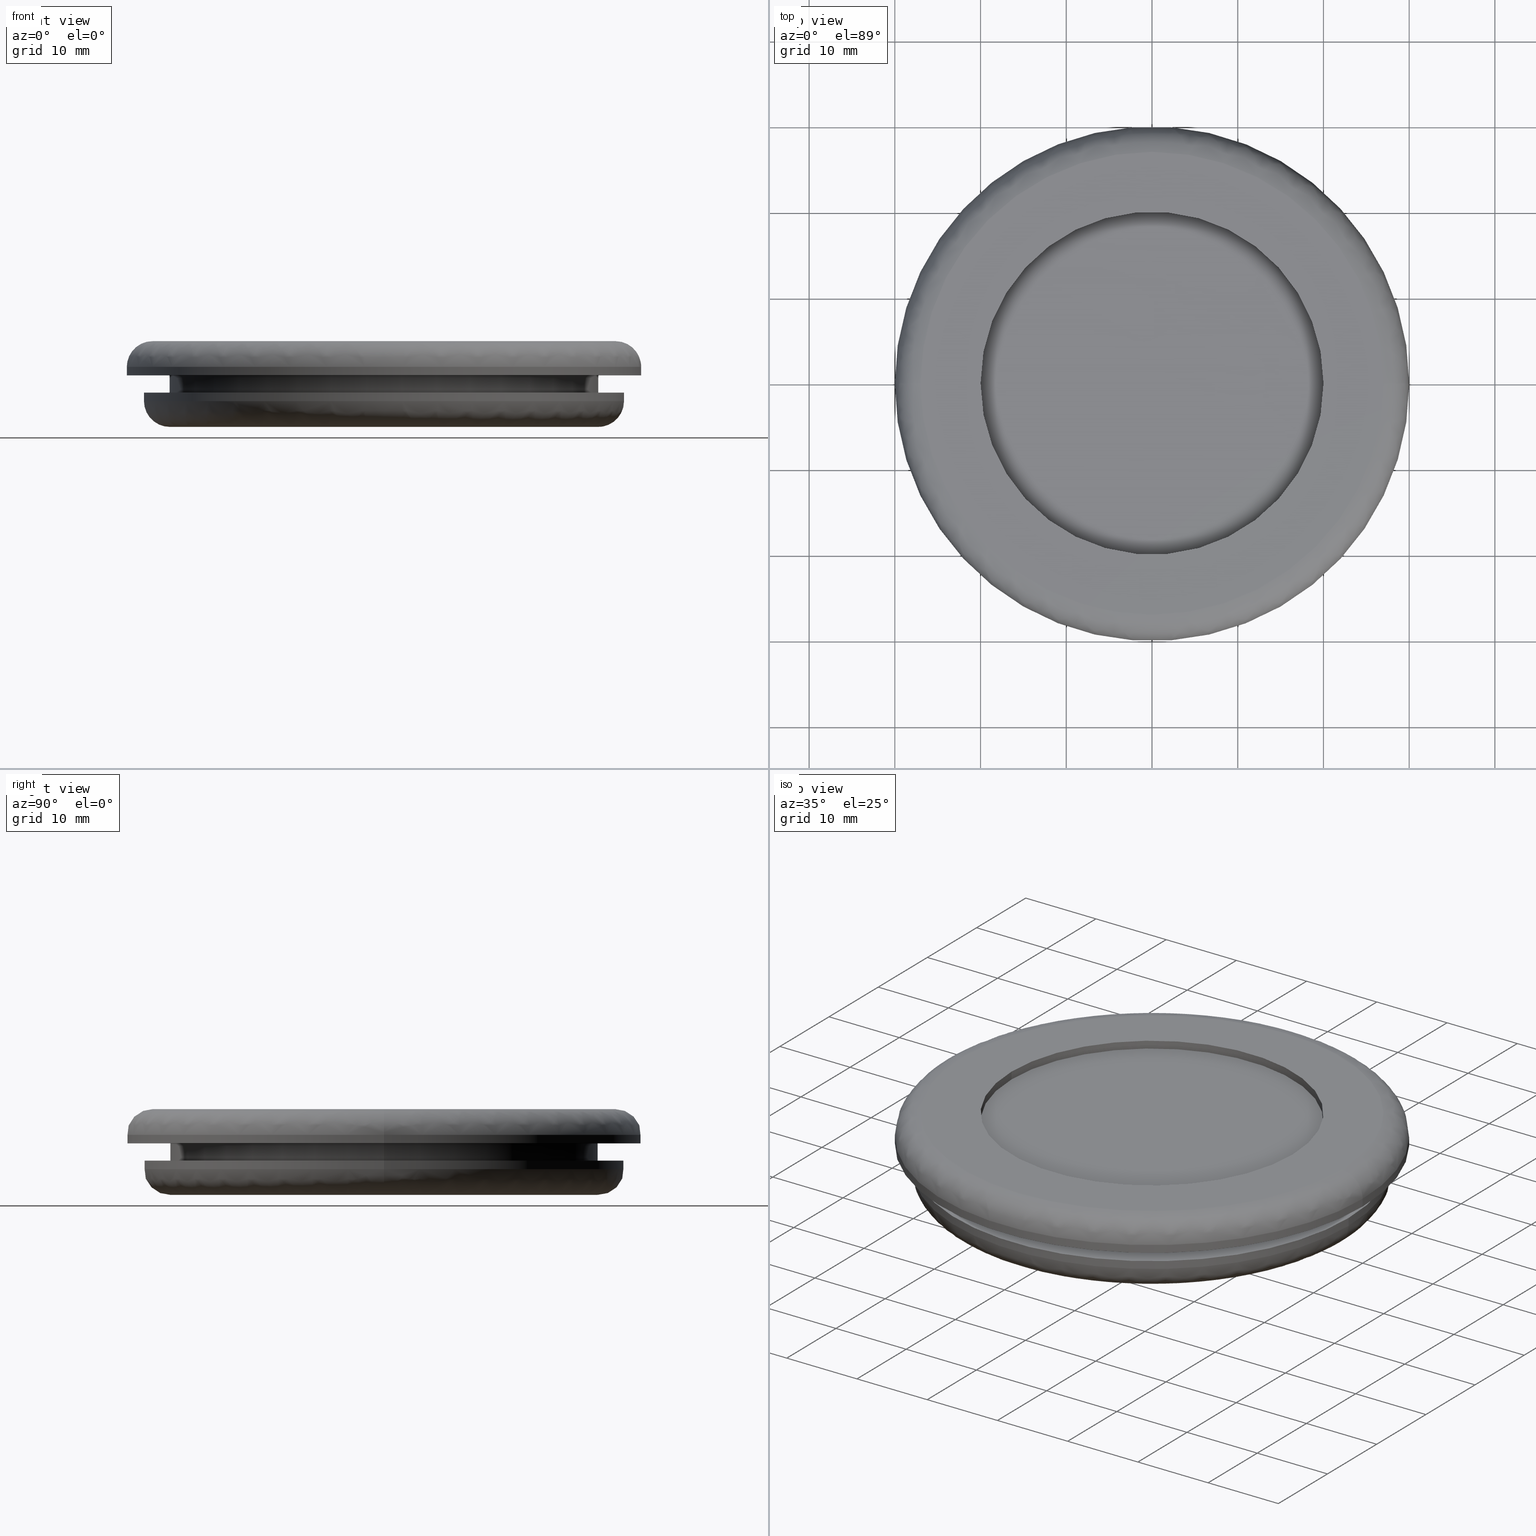
[diagram: canonical four-view strip — front | top / right | iso, engineering-drawing reading convention]
A machine part, canonical four-view strip (front | top / right | iso — engineering-drawing reading convention). The complete STEP part file that produces these views, byte-faithful:
ISO-10303-21;
HEADER;

FILE_DESCRIPTION( (''), '2;1');
FILE_NAME ('PC50.17744.TM_MG_18_CRUL_19601.stp','2021-03-16T13:33:29',(''),(''),'spGate 17.5.1','','');

FILE_SCHEMA (('AUTOMOTIVE_DESIGN'));
ENDSEC;

DATA;
#10=(GEOMETRIC_REPRESENTATION_CONTEXT(3) GLOBAL_UNCERTAINTY_ASSIGNED_CONTEXT((#11)) GLOBAL_UNIT_ASSIGNED_CONTEXT((#12,#13,#14)) REPRESENTATION_CONTEXT('ID1','3D'));
#11=UNCERTAINTY_MEASURE_WITH_UNIT(LENGTH_MEASURE(0.01),#15,'DISTANCE_ACCURACY_VALUE','Maximum model space distance between geometric entities at asserted connectivities');
#12=(NAMED_UNIT(*) SI_UNIT($,.STERADIAN.) SOLID_ANGLE_UNIT());
#13=(CONVERSION_BASED_UNIT('DEGREE',#16) NAMED_UNIT(#17) PLANE_ANGLE_UNIT());
#14=(LENGTH_UNIT() NAMED_UNIT(*) SI_UNIT(.MILLI.,.METRE.));
#15=(LENGTH_UNIT() NAMED_UNIT(*) SI_UNIT(.MILLI.,.METRE.));
#16=PLANE_ANGLE_MEASURE_WITH_UNIT(PLANE_ANGLE_MEASURE(0.01745329252),#18);
#17=DIMENSIONAL_EXPONENTS(0.0,0.0,0.0,0.0,0.0,0.0,0.0);
#18=(NAMED_UNIT(*) PLANE_ANGLE_UNIT() SI_UNIT($,.RADIAN.));
#19=MANIFOLD_SOLID_BREP('TM-MG-18',#31);
#20=ADVANCED_BREP_SHAPE_REPRESENTATION('',(#19),#10);
#21=APPLICATION_CONTEXT('');
#22=APPLICATION_PROTOCOL_DEFINITION('International Standard','automotive_design',1999,#21);
#23=PRODUCT_DEFINITION_CONTEXT('',#21,'design');
#24=PRODUCT_CONTEXT('',#21,'mechanical');
#25=PRODUCT('','','',(#24));
#26=PRODUCT_DEFINITION_FORMATION_WITH_SPECIFIED_SOURCE('','',#25,.NOT_KNOWN.);
#27=PRODUCT_RELATED_PRODUCT_CATEGORY('tool','tool',(#25));
#28=PRODUCT_DEFINITION('','',#26,#23);
#29=PRODUCT_DEFINITION_SHAPE('','',#28);
#30=SHAPE_DEFINITION_REPRESENTATION(#29,#20);
#31=CLOSED_SHELL('',(#40,#41,#42,#43,#44,#45,#46,#47,#48,#49,#50,#51,#52,#53,#54,#55,#56,#57,#58,#59));
#32=COLOUR_RGB('',0.00000000000E+00,0.00000000000E+00,0.00000000000E+00);
#33=FILL_AREA_STYLE_COLOUR('',#32);
#34=FILL_AREA_STYLE('',(#33));
#35=SURFACE_STYLE_FILL_AREA(#34);
#36=SURFACE_SIDE_STYLE('',(#35));
#37=SURFACE_STYLE_USAGE(.BOTH.,#36);
#38=PRESENTATION_STYLE_ASSIGNMENT((#37));
#39=STYLED_ITEM('',(#38),#19);
#40=ADVANCED_FACE('',(#61),#60,.F.);
#41=ADVANCED_FACE('',(#71),#70,.F.);
#42=ADVANCED_FACE('',(#81,#82),#80,.F.);
#43=ADVANCED_FACE('',(#92,#93),#91,.F.);
#44=ADVANCED_FACE('',(#103,#104),#102,.F.);
#45=ADVANCED_FACE('',(#114,#115),#113,.F.);
#46=ADVANCED_FACE('',(#125),#124,.F.);
#47=ADVANCED_FACE('',(#135),#134,.F.);
#48=ADVANCED_FACE('',(#145),#144,.T.);
#49=ADVANCED_FACE('',(#155),#154,.T.);
#50=ADVANCED_FACE('',(#165),#164,.T.);
#51=ADVANCED_FACE('',(#175),#174,.T.);
#52=ADVANCED_FACE('',(#185),#184,.T.);
#53=ADVANCED_FACE('',(#195),#194,.T.);
#54=ADVANCED_FACE('',(#205),#204,.T.);
#55=ADVANCED_FACE('',(#215),#214,.T.);
#56=ADVANCED_FACE('',(#225),#224,.T.);
#57=ADVANCED_FACE('',(#235),#234,.T.);
#58=ADVANCED_FACE('',(#245),#244,.F.);
#59=ADVANCED_FACE('',(#255),#254,.F.);
#60=PLANE('',#267);
#61=FACE_OUTER_BOUND('',#268,.T.);
#62=COLOUR_RGB('',1.00000000000E+00,1.00000000000E+00,1.00000000000E+00);
#63=FILL_AREA_STYLE_COLOUR('',#62);
#64=FILL_AREA_STYLE('',(#63));
#65=SURFACE_STYLE_FILL_AREA(#64);
#66=SURFACE_SIDE_STYLE('',(#65));
#67=SURFACE_STYLE_USAGE(.BOTH.,#66);
#68=PRESENTATION_STYLE_ASSIGNMENT((#67));
#69=STYLED_ITEM('',(#68),#40);
#70=PLANE('',#272);
#71=FACE_OUTER_BOUND('',#273,.T.);
#72=COLOUR_RGB('',1.00000000000E+00,1.00000000000E+00,1.00000000000E+00);
#73=FILL_AREA_STYLE_COLOUR('',#72);
#74=FILL_AREA_STYLE('',(#73));
#75=SURFACE_STYLE_FILL_AREA(#74);
#76=SURFACE_SIDE_STYLE('',(#75));
#77=SURFACE_STYLE_USAGE(.BOTH.,#76);
#78=PRESENTATION_STYLE_ASSIGNMENT((#77));
#79=STYLED_ITEM('',(#78),#41);
#80=PLANE('',#277);
#81=FACE_OUTER_BOUND('',#278,.T.);
#82=FACE_BOUND('',#279,.T.);
#83=COLOUR_RGB('',1.00000000000E+00,1.00000000000E+00,1.00000000000E+00);
#84=FILL_AREA_STYLE_COLOUR('',#83);
#85=FILL_AREA_STYLE('',(#84));
#86=SURFACE_STYLE_FILL_AREA(#85);
#87=SURFACE_SIDE_STYLE('',(#86));
#88=SURFACE_STYLE_USAGE(.BOTH.,#87);
#89=PRESENTATION_STYLE_ASSIGNMENT((#88));
#90=STYLED_ITEM('',(#89),#42);
#91=PLANE('',#283);
#92=FACE_OUTER_BOUND('',#284,.T.);
#93=FACE_BOUND('',#285,.T.);
#94=COLOUR_RGB('',1.00000000000E+00,1.00000000000E+00,1.00000000000E+00);
#95=FILL_AREA_STYLE_COLOUR('',#94);
#96=FILL_AREA_STYLE('',(#95));
#97=SURFACE_STYLE_FILL_AREA(#96);
#98=SURFACE_SIDE_STYLE('',(#97));
#99=SURFACE_STYLE_USAGE(.BOTH.,#98);
#100=PRESENTATION_STYLE_ASSIGNMENT((#99));
#101=STYLED_ITEM('',(#100),#43);
#102=PLANE('',#289);
#103=FACE_OUTER_BOUND('',#290,.T.);
#104=FACE_BOUND('',#291,.T.);
#105=COLOUR_RGB('',1.00000000000E+00,1.00000000000E+00,1.00000000000E+00);
#106=FILL_AREA_STYLE_COLOUR('',#105);
#107=FILL_AREA_STYLE('',(#106));
#108=SURFACE_STYLE_FILL_AREA(#107);
#109=SURFACE_SIDE_STYLE('',(#108));
#110=SURFACE_STYLE_USAGE(.BOTH.,#109);
#111=PRESENTATION_STYLE_ASSIGNMENT((#110));
#112=STYLED_ITEM('',(#111),#44);
#113=PLANE('',#295);
#114=FACE_OUTER_BOUND('',#296,.T.);
#115=FACE_BOUND('',#297,.T.);
#116=COLOUR_RGB('',1.00000000000E+00,1.00000000000E+00,1.00000000000E+00);
#117=FILL_AREA_STYLE_COLOUR('',#116);
#118=FILL_AREA_STYLE('',(#117));
#119=SURFACE_STYLE_FILL_AREA(#118);
#120=SURFACE_SIDE_STYLE('',(#119));
#121=SURFACE_STYLE_USAGE(.BOTH.,#120);
#122=PRESENTATION_STYLE_ASSIGNMENT((#121));
#123=STYLED_ITEM('',(#122),#45);
#124=CYLINDRICAL_SURFACE('',#301,2.00000000000E+01);
#125=FACE_OUTER_BOUND('',#302,.T.);
#126=COLOUR_RGB('',1.00000000000E+00,1.00000000000E+00,1.00000000000E+00);
#127=FILL_AREA_STYLE_COLOUR('',#126);
#128=FILL_AREA_STYLE('',(#127));
#129=SURFACE_STYLE_FILL_AREA(#128);
#130=SURFACE_SIDE_STYLE('',(#129));
#131=SURFACE_STYLE_USAGE(.BOTH.,#130);
#132=PRESENTATION_STYLE_ASSIGNMENT((#131));
#133=STYLED_ITEM('',(#132),#46);
#134=CYLINDRICAL_SURFACE('',#306,2.00000000000E+01);
#135=FACE_OUTER_BOUND('',#307,.T.);
#136=COLOUR_RGB('',1.00000000000E+00,1.00000000000E+00,1.00000000000E+00);
#137=FILL_AREA_STYLE_COLOUR('',#136);
#138=FILL_AREA_STYLE('',(#137));
#139=SURFACE_STYLE_FILL_AREA(#138);
#140=SURFACE_SIDE_STYLE('',(#139));
#141=SURFACE_STYLE_USAGE(.BOTH.,#140);
#142=PRESENTATION_STYLE_ASSIGNMENT((#141));
#143=STYLED_ITEM('',(#142),#47);
#144=( BOUNDED_SURFACE() B_SPLINE_SURFACE( 2,2,((#308,#309,#310,#311,#312),(#313,#314,#315,#316,#317),(#318,#319,#320,#321,#322),(#323,#324,#325,#326,#327),(#328,#329,#330,#331,#332)), .UNSPECIFIED.,.F.,.F.,.F.) B_SPLINE_SURFACE_WITH_KNOTS((3,2,3),(3,2,3),(0.00000000000E+00,5.00000000000E-01,1.00000000000E+00),(0.00000000000E+00,5.00000000000E-01,1.00000000000E+00), .UNSPECIFIED. ) GEOMETRIC_REPRESENTATION_ITEM() RATIONAL_B_SPLINE_SURFACE(((1.00000000000E+00,7.07106781187E-01,1.00000000000E+00,7.07106781187E-01,1.00000000000E+00),(7.07106781187E-01,5.00000000000E-01,7.07106781187E-01,5.00000000000E-01,7.07106781187E-01),(1.00000000000E+00,7.07106781187E-01,1.00000000000E+00,7.07106781187E-01,1.00000000000E+00),(7.07106781187E-01,5.00000000000E-01,7.07106781187E-01,5.00000000000E-01,7.07106781187E-01),(1.00000000000E+00,7.07106781187E-01,1.00000000000E+00,7.07106781187E-01,1.00000000000E+00))) REPRESENTATION_ITEM('') SURFACE() );
#145=FACE_OUTER_BOUND('',#333,.T.);
#146=COLOUR_RGB('',1.00000000000E+00,1.00000000000E+00,1.00000000000E+00);
#147=FILL_AREA_STYLE_COLOUR('',#146);
#148=FILL_AREA_STYLE('',(#147));
#149=SURFACE_STYLE_FILL_AREA(#148);
#150=SURFACE_SIDE_STYLE('',(#149));
#151=SURFACE_STYLE_USAGE(.BOTH.,#150);
#152=PRESENTATION_STYLE_ASSIGNMENT((#151));
#153=STYLED_ITEM('',(#152),#48);
#154=( BOUNDED_SURFACE() B_SPLINE_SURFACE( 2,2,((#334,#335,#336,#337,#338),(#339,#340,#341,#342,#343),(#344,#345,#346,#347,#348),(#349,#350,#351,#352,#353),(#354,#355,#356,#357,#358)), .UNSPECIFIED.,.F.,.F.,.F.) B_SPLINE_SURFACE_WITH_KNOTS((3,2,3),(3,2,3),(0.00000000000E+00,5.00000000000E-01,1.00000000000E+00),(0.00000000000E+00,5.00000000000E-01,1.00000000000E+00), .UNSPECIFIED. ) GEOMETRIC_REPRESENTATION_ITEM() RATIONAL_B_SPLINE_SURFACE(((1.00000000000E+00,7.07106781187E-01,1.00000000000E+00,7.07106781187E-01,1.00000000000E+00),(7.07106781187E-01,5.00000000000E-01,7.07106781187E-01,5.00000000000E-01,7.07106781187E-01),(1.00000000000E+00,7.07106781187E-01,1.00000000000E+00,7.07106781187E-01,1.00000000000E+00),(7.07106781187E-01,5.00000000000E-01,7.07106781187E-01,5.00000000000E-01,7.07106781187E-01),(1.00000000000E+00,7.07106781187E-01,1.00000000000E+00,7.07106781187E-01,1.00000000000E+00))) REPRESENTATION_ITEM('') SURFACE() );
#155=FACE_OUTER_BOUND('',#359,.T.);
#156=COLOUR_RGB('',1.00000000000E+00,1.00000000000E+00,1.00000000000E+00);
#157=FILL_AREA_STYLE_COLOUR('',#156);
#158=FILL_AREA_STYLE('',(#157));
#159=SURFACE_STYLE_FILL_AREA(#158);
#160=SURFACE_SIDE_STYLE('',(#159));
#161=SURFACE_STYLE_USAGE(.BOTH.,#160);
#162=PRESENTATION_STYLE_ASSIGNMENT((#161));
#163=STYLED_ITEM('',(#162),#49);
#164=CYLINDRICAL_SURFACE('',#363,3.00000000000E+01);
#165=FACE_OUTER_BOUND('',#364,.T.);
#166=COLOUR_RGB('',1.00000000000E+00,1.00000000000E+00,1.00000000000E+00);
#167=FILL_AREA_STYLE_COLOUR('',#166);
#168=FILL_AREA_STYLE('',(#167));
#169=SURFACE_STYLE_FILL_AREA(#168);
#170=SURFACE_SIDE_STYLE('',(#169));
#171=SURFACE_STYLE_USAGE(.BOTH.,#170);
#172=PRESENTATION_STYLE_ASSIGNMENT((#171));
#173=STYLED_ITEM('',(#172),#50);
#174=CYLINDRICAL_SURFACE('',#368,3.00000000000E+01);
#175=FACE_OUTER_BOUND('',#369,.T.);
#176=COLOUR_RGB('',1.00000000000E+00,1.00000000000E+00,1.00000000000E+00);
#177=FILL_AREA_STYLE_COLOUR('',#176);
#178=FILL_AREA_STYLE('',(#177));
#179=SURFACE_STYLE_FILL_AREA(#178);
#180=SURFACE_SIDE_STYLE('',(#179));
#181=SURFACE_STYLE_USAGE(.BOTH.,#180);
#182=PRESENTATION_STYLE_ASSIGNMENT((#181));
#183=STYLED_ITEM('',(#182),#51);
#184=CYLINDRICAL_SURFACE('',#373,2.50000000000E+01);
#185=FACE_OUTER_BOUND('',#374,.T.);
#186=COLOUR_RGB('',1.00000000000E+00,1.00000000000E+00,1.00000000000E+00);
#187=FILL_AREA_STYLE_COLOUR('',#186);
#188=FILL_AREA_STYLE('',(#187));
#189=SURFACE_STYLE_FILL_AREA(#188);
#190=SURFACE_SIDE_STYLE('',(#189));
#191=SURFACE_STYLE_USAGE(.BOTH.,#190);
#192=PRESENTATION_STYLE_ASSIGNMENT((#191));
#193=STYLED_ITEM('',(#192),#52);
#194=CYLINDRICAL_SURFACE('',#378,2.50000000000E+01);
#195=FACE_OUTER_BOUND('',#379,.T.);
#196=COLOUR_RGB('',1.00000000000E+00,1.00000000000E+00,1.00000000000E+00);
#197=FILL_AREA_STYLE_COLOUR('',#196);
#198=FILL_AREA_STYLE('',(#197));
#199=SURFACE_STYLE_FILL_AREA(#198);
#200=SURFACE_SIDE_STYLE('',(#199));
#201=SURFACE_STYLE_USAGE(.BOTH.,#200);
#202=PRESENTATION_STYLE_ASSIGNMENT((#201));
#203=STYLED_ITEM('',(#202),#53);
#204=CYLINDRICAL_SURFACE('',#383,2.80000000000E+01);
#205=FACE_OUTER_BOUND('',#384,.T.);
#206=COLOUR_RGB('',1.00000000000E+00,1.00000000000E+00,1.00000000000E+00);
#207=FILL_AREA_STYLE_COLOUR('',#206);
#208=FILL_AREA_STYLE('',(#207));
#209=SURFACE_STYLE_FILL_AREA(#208);
#210=SURFACE_SIDE_STYLE('',(#209));
#211=SURFACE_STYLE_USAGE(.BOTH.,#210);
#212=PRESENTATION_STYLE_ASSIGNMENT((#211));
#213=STYLED_ITEM('',(#212),#54);
#214=CYLINDRICAL_SURFACE('',#388,2.80000000000E+01);
#215=FACE_OUTER_BOUND('',#389,.T.);
#216=COLOUR_RGB('',1.00000000000E+00,1.00000000000E+00,1.00000000000E+00);
#217=FILL_AREA_STYLE_COLOUR('',#216);
#218=FILL_AREA_STYLE('',(#217));
#219=SURFACE_STYLE_FILL_AREA(#218);
#220=SURFACE_SIDE_STYLE('',(#219));
#221=SURFACE_STYLE_USAGE(.BOTH.,#220);
#222=PRESENTATION_STYLE_ASSIGNMENT((#221));
#223=STYLED_ITEM('',(#222),#55);
#224=( BOUNDED_SURFACE() B_SPLINE_SURFACE( 2,2,((#390,#391,#392,#393,#394),(#395,#396,#397,#398,#399),(#400,#401,#402,#403,#404),(#405,#406,#407,#408,#409),(#410,#411,#412,#413,#414)), .UNSPECIFIED.,.F.,.F.,.F.) B_SPLINE_SURFACE_WITH_KNOTS((3,2,3),(3,2,3),(0.00000000000E+00,5.00000000000E-01,1.00000000000E+00),(0.00000000000E+00,5.00000000000E-01,1.00000000000E+00), .UNSPECIFIED. ) GEOMETRIC_REPRESENTATION_ITEM() RATIONAL_B_SPLINE_SURFACE(((1.00000000000E+00,7.07106781187E-01,1.00000000000E+00,7.07106781187E-01,1.00000000000E+00),(7.07106781187E-01,5.00000000000E-01,7.07106781187E-01,5.00000000000E-01,7.07106781187E-01),(1.00000000000E+00,7.07106781187E-01,1.00000000000E+00,7.07106781187E-01,1.00000000000E+00),(7.07106781187E-01,5.00000000000E-01,7.07106781187E-01,5.00000000000E-01,7.07106781187E-01),(1.00000000000E+00,7.07106781187E-01,1.00000000000E+00,7.07106781187E-01,1.00000000000E+00))) REPRESENTATION_ITEM('') SURFACE() );
#225=FACE_OUTER_BOUND('',#415,.T.);
#226=COLOUR_RGB('',1.00000000000E+00,1.00000000000E+00,1.00000000000E+00);
#227=FILL_AREA_STYLE_COLOUR('',#226);
#228=FILL_AREA_STYLE('',(#227));
#229=SURFACE_STYLE_FILL_AREA(#228);
#230=SURFACE_SIDE_STYLE('',(#229));
#231=SURFACE_STYLE_USAGE(.BOTH.,#230);
#232=PRESENTATION_STYLE_ASSIGNMENT((#231));
#233=STYLED_ITEM('',(#232),#56);
#234=( BOUNDED_SURFACE() B_SPLINE_SURFACE( 2,2,((#416,#417,#418,#419,#420),(#421,#422,#423,#424,#425),(#426,#427,#428,#429,#430),(#431,#432,#433,#434,#435),(#436,#437,#438,#439,#440)), .UNSPECIFIED.,.F.,.F.,.F.) B_SPLINE_SURFACE_WITH_KNOTS((3,2,3),(3,2,3),(0.00000000000E+00,5.00000000000E-01,1.00000000000E+00),(0.00000000000E+00,5.00000000000E-01,1.00000000000E+00), .UNSPECIFIED. ) GEOMETRIC_REPRESENTATION_ITEM() RATIONAL_B_SPLINE_SURFACE(((1.00000000000E+00,7.07106781187E-01,1.00000000000E+00,7.07106781187E-01,1.00000000000E+00),(7.07106781187E-01,5.00000000000E-01,7.07106781187E-01,5.00000000000E-01,7.07106781187E-01),(1.00000000000E+00,7.07106781187E-01,1.00000000000E+00,7.07106781187E-01,1.00000000000E+00),(7.07106781187E-01,5.00000000000E-01,7.07106781187E-01,5.00000000000E-01,7.07106781187E-01),(1.00000000000E+00,7.07106781187E-01,1.00000000000E+00,7.07106781187E-01,1.00000000000E+00))) REPRESENTATION_ITEM('') SURFACE() );
#235=FACE_OUTER_BOUND('',#441,.T.);
#236=COLOUR_RGB('',1.00000000000E+00,1.00000000000E+00,1.00000000000E+00);
#237=FILL_AREA_STYLE_COLOUR('',#236);
#238=FILL_AREA_STYLE('',(#237));
#239=SURFACE_STYLE_FILL_AREA(#238);
#240=SURFACE_SIDE_STYLE('',(#239));
#241=SURFACE_STYLE_USAGE(.BOTH.,#240);
#242=PRESENTATION_STYLE_ASSIGNMENT((#241));
#243=STYLED_ITEM('',(#242),#57);
#244=CYLINDRICAL_SURFACE('',#445,2.00000000000E+01);
#245=FACE_OUTER_BOUND('',#446,.T.);
#246=COLOUR_RGB('',1.00000000000E+00,1.00000000000E+00,1.00000000000E+00);
#247=FILL_AREA_STYLE_COLOUR('',#246);
#248=FILL_AREA_STYLE('',(#247));
#249=SURFACE_STYLE_FILL_AREA(#248);
#250=SURFACE_SIDE_STYLE('',(#249));
#251=SURFACE_STYLE_USAGE(.BOTH.,#250);
#252=PRESENTATION_STYLE_ASSIGNMENT((#251));
#253=STYLED_ITEM('',(#252),#58);
#254=CYLINDRICAL_SURFACE('',#450,2.00000000000E+01);
#255=FACE_OUTER_BOUND('',#451,.T.);
#256=COLOUR_RGB('',1.00000000000E+00,1.00000000000E+00,1.00000000000E+00);
#257=FILL_AREA_STYLE_COLOUR('',#256);
#258=FILL_AREA_STYLE('',(#257));
#259=SURFACE_STYLE_FILL_AREA(#258);
#260=SURFACE_SIDE_STYLE('',(#259));
#261=SURFACE_STYLE_USAGE(.BOTH.,#260);
#262=PRESENTATION_STYLE_ASSIGNMENT((#261));
#263=STYLED_ITEM('',(#262),#59);
#264=CARTESIAN_POINT('',(4.60000000000E+01,-4.15692193817E+01,-1.00000000000E+00));
#265=DIRECTION('',(-0.00000000000E+00,0.00000000000E+00,-1.00000000000E+00));
#266=DIRECTION('',(-1.00000000000E+00,0.00000000000E+00,0.00000000000E+00));
#267=AXIS2_PLACEMENT_3D('',#264,#265,#266);
#268=EDGE_LOOP('',(#452,#453));
#269=CARTESIAN_POINT('',(-2.60000000000E+01,-4.15692193817E+01,-1.50000000000E+00));
#270=DIRECTION('',(0.00000000000E+00,0.00000000000E+00,1.00000000000E+00));
#271=DIRECTION('',(1.00000000000E+00,0.00000000000E+00,-0.00000000000E+00));
#272=AXIS2_PLACEMENT_3D('',#269,#270,#271);
#273=EDGE_LOOP('',(#454,#455));
#274=CARTESIAN_POINT('',(6.21000000000E+01,-5.61184461653E+01,-2.84217094302E-14));
#275=DIRECTION('',(-0.00000000000E+00,0.00000000000E+00,-1.00000000000E+00));
#276=DIRECTION('',(-1.00000000000E+00,0.00000000000E+00,0.00000000000E+00));
#277=AXIS2_PLACEMENT_3D('',#274,#275,#276);
#278=EDGE_LOOP('',(#456,#457));
#279=EDGE_LOOP('',(#458,#459));
#280=CARTESIAN_POINT('',(-3.90000000000E+01,-6.19615242271E+01,-4.00000000001E+00));
#281=DIRECTION('',(0.00000000000E+00,0.00000000000E+00,1.00000000000E+00));
#282=DIRECTION('',(1.00000000000E+00,0.00000000000E+00,-0.00000000000E+00));
#283=AXIS2_PLACEMENT_3D('',#280,#281,#282);
#284=EDGE_LOOP('',(#460,#461));
#285=EDGE_LOOP('',(#462,#463));
#286=CARTESIAN_POINT('',(6.44000000000E+01,-5.81969071343E+01,-6.00000000001E+00));
#287=DIRECTION('',(-0.00000000000E+00,0.00000000000E+00,-1.00000000000E+00));
#288=DIRECTION('',(-1.00000000000E+00,0.00000000000E+00,0.00000000000E+00));
#289=AXIS2_PLACEMENT_3D('',#286,#287,#288);
#290=EDGE_LOOP('',(#464,#465));
#291=EDGE_LOOP('',(#466,#467));
#292=CARTESIAN_POINT('',(-3.25000000000E+01,-5.19615242271E+01,-1.00000000000E+01));
#293=DIRECTION('',(0.00000000000E+00,0.00000000000E+00,1.00000000000E+00));
#294=DIRECTION('',(1.00000000000E+00,0.00000000000E+00,-0.00000000000E+00));
#295=AXIS2_PLACEMENT_3D('',#292,#293,#294);
#296=EDGE_LOOP('',(#468,#469));
#297=EDGE_LOOP('',(#470,#471));
#298=CARTESIAN_POINT('',(-1.19371179608E-12,0.00000000000E+00,0.00000000000E+00));
#299=DIRECTION('',(0.00000000000E+00,-0.00000000000E+00,1.00000000000E+00));
#300=DIRECTION('',(1.00000000000E+00,-0.00000000000E+00,-0.00000000000E+00));
#301=AXIS2_PLACEMENT_3D('',#298,#299,#300);
#302=EDGE_LOOP('',(#472,#473,#474,#475));
#303=CARTESIAN_POINT('',(-1.19371179608E-12,0.00000000000E+00,0.00000000000E+00));
#304=DIRECTION('',(0.00000000000E+00,-0.00000000000E+00,1.00000000000E+00));
#305=DIRECTION('',(1.00000000000E+00,-0.00000000000E+00,-0.00000000000E+00));
#306=AXIS2_PLACEMENT_3D('',#303,#304,#305);
#307=EDGE_LOOP('',(#476,#477,#478,#479));
#308=CARTESIAN_POINT('',(2.40000000000E+01,-2.93905524918E-15,-3.00000000000E+00));
#309=CARTESIAN_POINT('',(2.40000000000E+01,-2.93905524918E-15,-2.95177382233E-14));
#310=CARTESIAN_POINT('',(2.70000000000E+01,-3.30643715532E-15,-2.84217094304E-14));
#311=CARTESIAN_POINT('',(3.00000000000E+01,-3.67381906147E-15,-2.76336272728E-14));
#312=CARTESIAN_POINT('',(3.00000000000E+01,-3.67381906147E-15,-3.00000000000E+00));
#313=CARTESIAN_POINT('',(2.40000000000E+01,-2.40000000000E+01,-3.00000000000E+00));
#314=CARTESIAN_POINT('',(2.40000000000E+01,-2.40000000000E+01,-2.95177382233E-14));
#315=CARTESIAN_POINT('',(2.70000000000E+01,-2.70000000000E+01,-2.84217094304E-14));
#316=CARTESIAN_POINT('',(3.00000000000E+01,-3.00000000000E+01,-2.76336272728E-14));
#317=CARTESIAN_POINT('',(3.00000000000E+01,-3.00000000000E+01,-3.00000000000E+00));
#318=CARTESIAN_POINT('',(-1.19495923056E-12,-2.40000000000E+01,-3.00000000000E+00));
#319=CARTESIAN_POINT('',(-1.19495923056E-12,-2.40000000000E+01,-2.95177382233E-14));
#320=CARTESIAN_POINT('',(-1.19514291545E-12,-2.70000000000E+01,-2.84217094304E-14));
#321=CARTESIAN_POINT('',(-1.19532660033E-12,-3.00000000000E+01,-2.76336272728E-14));
#322=CARTESIAN_POINT('',(-1.19532660033E-12,-3.00000000000E+01,-3.00000000000E+00));
#323=CARTESIAN_POINT('',(-2.40000000000E+01,-2.40000000000E+01,-3.00000000000E+00));
#324=CARTESIAN_POINT('',(-2.40000000000E+01,-2.40000000000E+01,-2.95177382233E-14));
#325=CARTESIAN_POINT('',(-2.70000000000E+01,-2.70000000000E+01,-2.84217094304E-14));
#326=CARTESIAN_POINT('',(-3.00000000000E+01,-3.00000000000E+01,-2.76336272728E-14));
#327=CARTESIAN_POINT('',(-3.00000000000E+01,-3.00000000000E+01,-3.00000000000E+00));
#328=CARTESIAN_POINT('',(-2.40000000000E+01,-9.70687799425E-20,-3.00000000000E+00));
#329=CARTESIAN_POINT('',(-2.40000000000E+01,-9.70687799427E-20,-2.95177382233E-14));
#330=CARTESIAN_POINT('',(-2.70000000000E+01,-1.09202377435E-19,-2.84217094304E-14));
#331=CARTESIAN_POINT('',(-3.00000000000E+01,-1.21335974928E-19,-2.76336272728E-14));
#332=CARTESIAN_POINT('',(-3.00000000000E+01,-1.21335974927E-19,-3.00000000000E+00));
#333=EDGE_LOOP('',(#480,#481,#482,#483));
#334=CARTESIAN_POINT('',(-2.40000000000E+01,-9.70687799423E-20,-3.00000000000E+00));
#335=CARTESIAN_POINT('',(-2.40000000000E+01,-9.70687799423E-20,-2.95177382233E-14));
#336=CARTESIAN_POINT('',(-2.70000000000E+01,-1.09202377435E-19,-2.84217094304E-14));
#337=CARTESIAN_POINT('',(-3.00000000000E+01,-1.21335974928E-19,-2.76336272728E-14));
#338=CARTESIAN_POINT('',(-3.00000000000E+01,-1.21335974928E-19,-3.00000000000E+00));
#339=CARTESIAN_POINT('',(-2.40000000000E+01,2.40000000000E+01,-3.00000000000E+00));
#340=CARTESIAN_POINT('',(-2.40000000000E+01,2.40000000000E+01,-2.95177382233E-14));
#341=CARTESIAN_POINT('',(-2.70000000000E+01,2.70000000000E+01,-2.84217094304E-14));
#342=CARTESIAN_POINT('',(-3.00000000000E+01,3.00000000000E+01,-2.76336272728E-14));
#343=CARTESIAN_POINT('',(-3.00000000000E+01,3.00000000000E+01,-3.00000000000E+00));
#344=CARTESIAN_POINT('',(-1.19495942470E-12,2.40000000000E+01,-3.00000000000E+00));
#345=CARTESIAN_POINT('',(-1.19495942470E-12,2.40000000000E+01,-2.95177382233E-14));
#346=CARTESIAN_POINT('',(-1.19514313385E-12,2.70000000000E+01,-2.84217094304E-14));
#347=CARTESIAN_POINT('',(-1.19532684301E-12,3.00000000000E+01,-2.76336272728E-14));
#348=CARTESIAN_POINT('',(-1.19532684301E-12,3.00000000000E+01,-3.00000000000E+00));
#349=CARTESIAN_POINT('',(2.40000000000E+01,2.40000000000E+01,-3.00000000000E+00));
#350=CARTESIAN_POINT('',(2.40000000000E+01,2.40000000000E+01,-2.95177382233E-14));
#351=CARTESIAN_POINT('',(2.70000000000E+01,2.70000000000E+01,-2.84217094304E-14));
#352=CARTESIAN_POINT('',(3.00000000000E+01,3.00000000000E+01,-2.76336272728E-14));
#353=CARTESIAN_POINT('',(3.00000000000E+01,3.00000000000E+01,-3.00000000000E+00));
#354=CARTESIAN_POINT('',(2.40000000000E+01,2.93924938674E-15,-3.00000000000E+00));
#355=CARTESIAN_POINT('',(2.40000000000E+01,2.93924938674E-15,-2.95177382233E-14));
#356=CARTESIAN_POINT('',(2.70000000000E+01,3.30665556008E-15,-2.84217094304E-14));
#357=CARTESIAN_POINT('',(3.00000000000E+01,3.67406173342E-15,-2.76336272728E-14));
#358=CARTESIAN_POINT('',(3.00000000000E+01,3.67406173342E-15,-3.00000000000E+00));
#359=EDGE_LOOP('',(#484,#485,#486,#487));
#360=CARTESIAN_POINT('',(-1.19371179608E-12,0.00000000000E+00,0.00000000000E+00));
#361=DIRECTION('',(0.00000000000E+00,-0.00000000000E+00,1.00000000000E+00));
#362=DIRECTION('',(1.00000000000E+00,0.00000000000E+00,0.00000000000E+00));
#363=AXIS2_PLACEMENT_3D('',#360,#361,#362);
#364=EDGE_LOOP('',(#488,#489,#490,#491));
#365=CARTESIAN_POINT('',(-1.19371179608E-12,0.00000000000E+00,0.00000000000E+00));
#366=DIRECTION('',(0.00000000000E+00,-0.00000000000E+00,1.00000000000E+00));
#367=DIRECTION('',(1.00000000000E+00,0.00000000000E+00,0.00000000000E+00));
#368=AXIS2_PLACEMENT_3D('',#365,#366,#367);
#369=EDGE_LOOP('',(#492,#493,#494,#495));
#370=CARTESIAN_POINT('',(-1.19371179608E-12,0.00000000000E+00,0.00000000000E+00));
#371=DIRECTION('',(0.00000000000E+00,-0.00000000000E+00,1.00000000000E+00));
#372=DIRECTION('',(1.00000000000E+00,-0.00000000000E+00,-0.00000000000E+00));
#373=AXIS2_PLACEMENT_3D('',#370,#371,#372);
#374=EDGE_LOOP('',(#496,#497,#498,#499));
#375=CARTESIAN_POINT('',(-1.19371179608E-12,0.00000000000E+00,0.00000000000E+00));
#376=DIRECTION('',(0.00000000000E+00,-0.00000000000E+00,1.00000000000E+00));
#377=DIRECTION('',(1.00000000000E+00,-0.00000000000E+00,-0.00000000000E+00));
#378=AXIS2_PLACEMENT_3D('',#375,#376,#377);
#379=EDGE_LOOP('',(#500,#501,#502,#503));
#380=CARTESIAN_POINT('',(-1.19371179608E-12,0.00000000000E+00,0.00000000000E+00));
#381=DIRECTION('',(0.00000000000E+00,-0.00000000000E+00,1.00000000000E+00));
#382=DIRECTION('',(1.00000000000E+00,-0.00000000000E+00,-0.00000000000E+00));
#383=AXIS2_PLACEMENT_3D('',#380,#381,#382);
#384=EDGE_LOOP('',(#504,#505,#506,#507));
#385=CARTESIAN_POINT('',(-1.19371179608E-12,0.00000000000E+00,0.00000000000E+00));
#386=DIRECTION('',(0.00000000000E+00,-0.00000000000E+00,1.00000000000E+00));
#387=DIRECTION('',(1.00000000000E+00,-0.00000000000E+00,-0.00000000000E+00));
#388=AXIS2_PLACEMENT_3D('',#385,#386,#387);
#389=EDGE_LOOP('',(#508,#509,#510,#511));
#390=CARTESIAN_POINT('',(2.80000000000E+01,-3.42889779070E-15,-7.00000000000E+00));
#391=CARTESIAN_POINT('',(2.80000000000E+01,-3.42889779070E-15,-1.00000000000E+01));
#392=CARTESIAN_POINT('',(2.50000000000E+01,-3.06151588456E-15,-1.00000000000E+01));
#393=CARTESIAN_POINT('',(2.20000000000E+01,-2.69413397841E-15,-1.00000000000E+01));
#394=CARTESIAN_POINT('',(2.20000000000E+01,-2.69413397841E-15,-7.00000000000E+00));
#395=CARTESIAN_POINT('',(2.80000000000E+01,-2.80000000000E+01,-7.00000000000E+00));
#396=CARTESIAN_POINT('',(2.80000000000E+01,-2.80000000000E+01,-1.00000000000E+01));
#397=CARTESIAN_POINT('',(2.50000000000E+01,-2.50000000000E+01,-1.00000000000E+01));
#398=CARTESIAN_POINT('',(2.20000000000E+01,-2.20000000000E+01,-1.00000000000E+01));
#399=CARTESIAN_POINT('',(2.20000000000E+01,-2.20000000000E+01,-7.00000000000E+00));
#400=CARTESIAN_POINT('',(-1.19520414374E-12,-2.80000000000E+01,-7.00000000000E+00));
#401=CARTESIAN_POINT('',(-1.19520414374E-12,-2.80000000000E+01,-1.00000000000E+01));
#402=CARTESIAN_POINT('',(-1.19502045886E-12,-2.50000000000E+01,-1.00000000000E+01));
#403=CARTESIAN_POINT('',(-1.19483677397E-12,-2.20000000000E+01,-1.00000000000E+01));
#404=CARTESIAN_POINT('',(-1.19483677397E-12,-2.20000000000E+01,-7.00000000000E+00));
#405=CARTESIAN_POINT('',(-2.80000000000E+01,-2.80000000000E+01,-7.00000000000E+00));
#406=CARTESIAN_POINT('',(-2.80000000000E+01,-2.80000000000E+01,-1.00000000000E+01));
#407=CARTESIAN_POINT('',(-2.50000000000E+01,-2.50000000000E+01,-1.00000000000E+01));
#408=CARTESIAN_POINT('',(-2.20000000000E+01,-2.20000000000E+01,-1.00000000000E+01));
#409=CARTESIAN_POINT('',(-2.20000000000E+01,-2.20000000000E+01,-7.00000000000E+00));
#410=CARTESIAN_POINT('',(-2.80000000000E+01,-1.13246909933E-19,-7.00000000000E+00));
#411=CARTESIAN_POINT('',(-2.80000000000E+01,-1.13246909933E-19,-1.00000000000E+01));
#412=CARTESIAN_POINT('',(-2.50000000000E+01,-1.01113312440E-19,-1.00000000000E+01));
#413=CARTESIAN_POINT('',(-2.20000000000E+01,-8.89797149475E-20,-1.00000000000E+01));
#414=CARTESIAN_POINT('',(-2.20000000000E+01,-8.89797149472E-20,-7.00000000000E+00));
#415=EDGE_LOOP('',(#512,#513,#514,#515));
#416=CARTESIAN_POINT('',(-2.80000000000E+01,-1.13246909933E-19,-7.00000000000E+00));
#417=CARTESIAN_POINT('',(-2.80000000000E+01,-1.13246909933E-19,-1.00000000000E+01));
#418=CARTESIAN_POINT('',(-2.50000000000E+01,-1.01113312440E-19,-1.00000000000E+01));
#419=CARTESIAN_POINT('',(-2.20000000000E+01,-8.89797149471E-20,-1.00000000000E+01));
#420=CARTESIAN_POINT('',(-2.20000000000E+01,-8.89797149471E-20,-7.00000000000E+00));
#421=CARTESIAN_POINT('',(-2.80000000000E+01,2.80000000000E+01,-7.00000000000E+00));
#422=CARTESIAN_POINT('',(-2.80000000000E+01,2.80000000000E+01,-1.00000000000E+01));
#423=CARTESIAN_POINT('',(-2.50000000000E+01,2.50000000000E+01,-1.00000000000E+01));
#424=CARTESIAN_POINT('',(-2.20000000000E+01,2.20000000000E+01,-1.00000000000E+01));
#425=CARTESIAN_POINT('',(-2.20000000000E+01,2.20000000000E+01,-7.00000000000E+00));
#426=CARTESIAN_POINT('',(-1.19520437024E-12,2.80000000000E+01,-7.00000000000E+00));
#427=CARTESIAN_POINT('',(-1.19520437024E-12,2.80000000000E+01,-1.00000000000E+01));
#428=CARTESIAN_POINT('',(-1.19502066108E-12,2.50000000000E+01,-1.00000000000E+01));
#429=CARTESIAN_POINT('',(-1.19483695193E-12,2.20000000000E+01,-1.00000000000E+01));
#430=CARTESIAN_POINT('',(-1.19483695193E-12,2.20000000000E+01,-7.00000000000E+00));
#431=CARTESIAN_POINT('',(2.80000000000E+01,2.80000000000E+01,-7.00000000000E+00));
#432=CARTESIAN_POINT('',(2.80000000000E+01,2.80000000000E+01,-1.00000000000E+01));
#433=CARTESIAN_POINT('',(2.50000000000E+01,2.50000000000E+01,-1.00000000000E+01));
#434=CARTESIAN_POINT('',(2.20000000000E+01,2.20000000000E+01,-1.00000000000E+01));
#435=CARTESIAN_POINT('',(2.20000000000E+01,2.20000000000E+01,-7.00000000000E+00));
#436=CARTESIAN_POINT('',(2.80000000000E+01,3.42912428452E-15,-7.00000000000E+00));
#437=CARTESIAN_POINT('',(2.80000000000E+01,3.42912428452E-15,-1.00000000000E+01));
#438=CARTESIAN_POINT('',(2.50000000000E+01,3.06171811118E-15,-1.00000000000E+01));
#439=CARTESIAN_POINT('',(2.20000000000E+01,2.69431193784E-15,-1.00000000000E+01));
#440=CARTESIAN_POINT('',(2.20000000000E+01,2.69431193784E-15,-7.00000000000E+00));
#441=EDGE_LOOP('',(#516,#517,#518,#519));
#442=CARTESIAN_POINT('',(-1.19371179608E-12,0.00000000000E+00,0.00000000000E+00));
#443=DIRECTION('',(0.00000000000E+00,-0.00000000000E+00,1.00000000000E+00));
#444=DIRECTION('',(1.00000000000E+00,-0.00000000000E+00,-0.00000000000E+00));
#445=AXIS2_PLACEMENT_3D('',#442,#443,#444);
#446=EDGE_LOOP('',(#520,#521,#522,#523));
#447=CARTESIAN_POINT('',(-1.19371179608E-12,0.00000000000E+00,0.00000000000E+00));
#448=DIRECTION('',(0.00000000000E+00,-0.00000000000E+00,1.00000000000E+00));
#449=DIRECTION('',(1.00000000000E+00,-0.00000000000E+00,-0.00000000000E+00));
#450=AXIS2_PLACEMENT_3D('',#447,#448,#449);
#451=EDGE_LOOP('',(#524,#525,#526,#527));
#452=ORIENTED_EDGE('',*,*,#528,.F.);
#453=ORIENTED_EDGE('',*,*,#529,.F.);
#454=ORIENTED_EDGE('',*,*,#530,.T.);
#455=ORIENTED_EDGE('',*,*,#531,.T.);
#456=ORIENTED_EDGE('',*,*,#532,.F.);
#457=ORIENTED_EDGE('',*,*,#533,.F.);
#458=ORIENTED_EDGE('',*,*,#534,.T.);
#459=ORIENTED_EDGE('',*,*,#535,.T.);
#460=ORIENTED_EDGE('',*,*,#536,.T.);
#461=ORIENTED_EDGE('',*,*,#537,.T.);
#462=ORIENTED_EDGE('',*,*,#538,.F.);
#463=ORIENTED_EDGE('',*,*,#539,.F.);
#464=ORIENTED_EDGE('',*,*,#540,.F.);
#465=ORIENTED_EDGE('',*,*,#541,.F.);
#466=ORIENTED_EDGE('',*,*,#542,.T.);
#467=ORIENTED_EDGE('',*,*,#543,.T.);
#468=ORIENTED_EDGE('',*,*,#544,.T.);
#469=ORIENTED_EDGE('',*,*,#545,.T.);
#470=ORIENTED_EDGE('',*,*,#546,.F.);
#471=ORIENTED_EDGE('',*,*,#547,.F.);
#472=ORIENTED_EDGE('',*,*,#529,.T.);
#473=ORIENTED_EDGE('',*,*,#548,.T.);
#474=ORIENTED_EDGE('',*,*,#534,.F.);
#475=ORIENTED_EDGE('',*,*,#549,.F.);
#476=ORIENTED_EDGE('',*,*,#535,.F.);
#477=ORIENTED_EDGE('',*,*,#548,.F.);
#478=ORIENTED_EDGE('',*,*,#528,.T.);
#479=ORIENTED_EDGE('',*,*,#549,.T.);
#480=ORIENTED_EDGE('',*,*,#550,.F.);
#481=ORIENTED_EDGE('',*,*,#551,.F.);
#482=ORIENTED_EDGE('',*,*,#532,.T.);
#483=ORIENTED_EDGE('',*,*,#552,.T.);
#484=ORIENTED_EDGE('',*,*,#533,.T.);
#485=ORIENTED_EDGE('',*,*,#551,.T.);
#486=ORIENTED_EDGE('',*,*,#553,.F.);
#487=ORIENTED_EDGE('',*,*,#552,.F.);
#488=ORIENTED_EDGE('',*,*,#553,.T.);
#489=ORIENTED_EDGE('',*,*,#554,.F.);
#490=ORIENTED_EDGE('',*,*,#536,.F.);
#491=ORIENTED_EDGE('',*,*,#555,.T.);
#492=ORIENTED_EDGE('',*,*,#537,.F.);
#493=ORIENTED_EDGE('',*,*,#554,.T.);
#494=ORIENTED_EDGE('',*,*,#550,.T.);
#495=ORIENTED_EDGE('',*,*,#555,.F.);
#496=ORIENTED_EDGE('',*,*,#539,.T.);
#497=ORIENTED_EDGE('',*,*,#556,.F.);
#498=ORIENTED_EDGE('',*,*,#542,.F.);
#499=ORIENTED_EDGE('',*,*,#557,.T.);
#500=ORIENTED_EDGE('',*,*,#543,.F.);
#501=ORIENTED_EDGE('',*,*,#556,.T.);
#502=ORIENTED_EDGE('',*,*,#538,.T.);
#503=ORIENTED_EDGE('',*,*,#557,.F.);
#504=ORIENTED_EDGE('',*,*,#541,.T.);
#505=ORIENTED_EDGE('',*,*,#558,.F.);
#506=ORIENTED_EDGE('',*,*,#559,.F.);
#507=ORIENTED_EDGE('',*,*,#560,.T.);
#508=ORIENTED_EDGE('',*,*,#561,.F.);
#509=ORIENTED_EDGE('',*,*,#558,.T.);
#510=ORIENTED_EDGE('',*,*,#540,.T.);
#511=ORIENTED_EDGE('',*,*,#560,.F.);
#512=ORIENTED_EDGE('',*,*,#545,.F.);
#513=ORIENTED_EDGE('',*,*,#562,.F.);
#514=ORIENTED_EDGE('',*,*,#561,.T.);
#515=ORIENTED_EDGE('',*,*,#563,.T.);
#516=ORIENTED_EDGE('',*,*,#559,.T.);
#517=ORIENTED_EDGE('',*,*,#562,.T.);
#518=ORIENTED_EDGE('',*,*,#544,.F.);
#519=ORIENTED_EDGE('',*,*,#563,.F.);
#520=ORIENTED_EDGE('',*,*,#547,.T.);
#521=ORIENTED_EDGE('',*,*,#564,.T.);
#522=ORIENTED_EDGE('',*,*,#530,.F.);
#523=ORIENTED_EDGE('',*,*,#565,.F.);
#524=ORIENTED_EDGE('',*,*,#531,.F.);
#525=ORIENTED_EDGE('',*,*,#564,.F.);
#526=ORIENTED_EDGE('',*,*,#546,.T.);
#527=ORIENTED_EDGE('',*,*,#565,.T.);
#528=EDGE_CURVE('',#566,#567,#568,.T.);
#529=EDGE_CURVE('',#567,#566,#574,.T.);
#530=EDGE_CURVE('',#580,#581,#582,.T.);
#531=EDGE_CURVE('',#581,#580,#588,.T.);
#532=EDGE_CURVE('',#594,#595,#596,.T.);
#533=EDGE_CURVE('',#595,#594,#602,.T.);
#534=EDGE_CURVE('',#608,#609,#610,.T.);
#535=EDGE_CURVE('',#609,#608,#616,.T.);
#536=EDGE_CURVE('',#622,#623,#624,.T.);
#537=EDGE_CURVE('',#623,#622,#630,.T.);
#538=EDGE_CURVE('',#636,#637,#638,.T.);
#539=EDGE_CURVE('',#637,#636,#644,.T.);
#540=EDGE_CURVE('',#650,#651,#652,.T.);
#541=EDGE_CURVE('',#651,#650,#658,.T.);
#542=EDGE_CURVE('',#664,#665,#666,.T.);
#543=EDGE_CURVE('',#665,#664,#672,.T.);
#544=EDGE_CURVE('',#678,#679,#680,.T.);
#545=EDGE_CURVE('',#679,#678,#686,.T.);
#546=EDGE_CURVE('',#692,#693,#694,.T.);
#547=EDGE_CURVE('',#693,#692,#700,.T.);
#548=EDGE_CURVE('',#566,#609,#706,.T.);
#549=EDGE_CURVE('',#567,#608,#712,.T.);
#550=EDGE_CURVE('',#718,#719,#720,.T.);
#551=EDGE_CURVE('',#594,#718,#726,.T.);
#552=EDGE_CURVE('',#595,#719,#732,.T.);
#553=EDGE_CURVE('',#719,#718,#738,.T.);
#554=EDGE_CURVE('',#623,#718,#744,.T.);
#555=EDGE_CURVE('',#622,#719,#750,.T.);
#556=EDGE_CURVE('',#665,#636,#756,.T.);
#557=EDGE_CURVE('',#664,#637,#762,.T.);
#558=EDGE_CURVE('',#768,#650,#769,.T.);
#559=EDGE_CURVE('',#775,#768,#776,.T.);
#560=EDGE_CURVE('',#775,#651,#782,.T.);
#561=EDGE_CURVE('',#768,#775,#788,.T.);
#562=EDGE_CURVE('',#768,#679,#794,.T.);
#563=EDGE_CURVE('',#775,#678,#800,.T.);
#564=EDGE_CURVE('',#692,#581,#806,.T.);
#565=EDGE_CURVE('',#693,#580,#812,.T.);
#566=VERTEX_POINT('',#818);
#567=VERTEX_POINT('',#819);
#568=CIRCLE('',#823,2.00000000000E+01);
#569=COLOUR_RGB('',1.00000000000E+00,1.00000000000E+00,1.00000000000E+00);
#570=DRAUGHTING_PRE_DEFINED_CURVE_FONT('continuous');
#571=CURVE_STYLE( '',#570, POSITIVE_LENGTH_MEASURE(1.00000000000E-06),#569);
#572=PRESENTATION_STYLE_ASSIGNMENT((#571));
#573=STYLED_ITEM('',(#572),#528);
#574=CIRCLE('',#827,2.00000000000E+01);
#575=COLOUR_RGB('',1.00000000000E+00,1.00000000000E+00,1.00000000000E+00);
#576=DRAUGHTING_PRE_DEFINED_CURVE_FONT('continuous');
#577=CURVE_STYLE( '',#576, POSITIVE_LENGTH_MEASURE(1.00000000000E-06),#575);
#578=PRESENTATION_STYLE_ASSIGNMENT((#577));
#579=STYLED_ITEM('',(#578),#529);
#580=VERTEX_POINT('',#828);
#581=VERTEX_POINT('',#829);
#582=CIRCLE('',#833,2.00000000000E+01);
#583=COLOUR_RGB('',1.00000000000E+00,1.00000000000E+00,1.00000000000E+00);
#584=DRAUGHTING_PRE_DEFINED_CURVE_FONT('continuous');
#585=CURVE_STYLE( '',#584, POSITIVE_LENGTH_MEASURE(1.00000000000E-06),#583);
#586=PRESENTATION_STYLE_ASSIGNMENT((#585));
#587=STYLED_ITEM('',(#586),#530);
#588=CIRCLE('',#837,2.00000000000E+01);
#589=COLOUR_RGB('',1.00000000000E+00,1.00000000000E+00,1.00000000000E+00);
#590=DRAUGHTING_PRE_DEFINED_CURVE_FONT('continuous');
#591=CURVE_STYLE( '',#590, POSITIVE_LENGTH_MEASURE(1.00000000000E-06),#589);
#592=PRESENTATION_STYLE_ASSIGNMENT((#591));
#593=STYLED_ITEM('',(#592),#531);
#594=VERTEX_POINT('',#838);
#595=VERTEX_POINT('',#839);
#596=CIRCLE('',#843,2.70000000000E+01);
#597=COLOUR_RGB('',1.00000000000E+00,1.00000000000E+00,1.00000000000E+00);
#598=DRAUGHTING_PRE_DEFINED_CURVE_FONT('continuous');
#599=CURVE_STYLE( '',#598, POSITIVE_LENGTH_MEASURE(1.00000000000E-06),#597);
#600=PRESENTATION_STYLE_ASSIGNMENT((#599));
#601=STYLED_ITEM('',(#600),#532);
#602=CIRCLE('',#847,2.70000000000E+01);
#603=COLOUR_RGB('',1.00000000000E+00,1.00000000000E+00,1.00000000000E+00);
#604=DRAUGHTING_PRE_DEFINED_CURVE_FONT('continuous');
#605=CURVE_STYLE( '',#604, POSITIVE_LENGTH_MEASURE(1.00000000000E-06),#603);
#606=PRESENTATION_STYLE_ASSIGNMENT((#605));
#607=STYLED_ITEM('',(#606),#533);
#608=VERTEX_POINT('',#848);
#609=VERTEX_POINT('',#849);
#610=CIRCLE('',#853,2.00000000000E+01);
#611=COLOUR_RGB('',1.00000000000E+00,1.00000000000E+00,1.00000000000E+00);
#612=DRAUGHTING_PRE_DEFINED_CURVE_FONT('continuous');
#613=CURVE_STYLE( '',#612, POSITIVE_LENGTH_MEASURE(1.00000000000E-06),#611);
#614=PRESENTATION_STYLE_ASSIGNMENT((#613));
#615=STYLED_ITEM('',(#614),#534);
#616=CIRCLE('',#857,2.00000000000E+01);
#617=COLOUR_RGB('',1.00000000000E+00,1.00000000000E+00,1.00000000000E+00);
#618=DRAUGHTING_PRE_DEFINED_CURVE_FONT('continuous');
#619=CURVE_STYLE( '',#618, POSITIVE_LENGTH_MEASURE(1.00000000000E-06),#617);
#620=PRESENTATION_STYLE_ASSIGNMENT((#619));
#621=STYLED_ITEM('',(#620),#535);
#622=VERTEX_POINT('',#858);
#623=VERTEX_POINT('',#859);
#624=CIRCLE('',#863,3.00000000000E+01);
#625=COLOUR_RGB('',1.00000000000E+00,1.00000000000E+00,1.00000000000E+00);
#626=DRAUGHTING_PRE_DEFINED_CURVE_FONT('continuous');
#627=CURVE_STYLE( '',#626, POSITIVE_LENGTH_MEASURE(1.00000000000E-06),#625);
#628=PRESENTATION_STYLE_ASSIGNMENT((#627));
#629=STYLED_ITEM('',(#628),#536);
#630=CIRCLE('',#867,3.00000000000E+01);
#631=COLOUR_RGB('',1.00000000000E+00,1.00000000000E+00,1.00000000000E+00);
#632=DRAUGHTING_PRE_DEFINED_CURVE_FONT('continuous');
#633=CURVE_STYLE( '',#632, POSITIVE_LENGTH_MEASURE(1.00000000000E-06),#631);
#634=PRESENTATION_STYLE_ASSIGNMENT((#633));
#635=STYLED_ITEM('',(#634),#537);
#636=VERTEX_POINT('',#868);
#637=VERTEX_POINT('',#869);
#638=CIRCLE('',#873,2.50000000000E+01);
#639=COLOUR_RGB('',1.00000000000E+00,1.00000000000E+00,1.00000000000E+00);
#640=DRAUGHTING_PRE_DEFINED_CURVE_FONT('continuous');
#641=CURVE_STYLE( '',#640, POSITIVE_LENGTH_MEASURE(1.00000000000E-06),#639);
#642=PRESENTATION_STYLE_ASSIGNMENT((#641));
#643=STYLED_ITEM('',(#642),#538);
#644=CIRCLE('',#877,2.50000000000E+01);
#645=COLOUR_RGB('',1.00000000000E+00,1.00000000000E+00,1.00000000000E+00);
#646=DRAUGHTING_PRE_DEFINED_CURVE_FONT('continuous');
#647=CURVE_STYLE( '',#646, POSITIVE_LENGTH_MEASURE(1.00000000000E-06),#645);
#648=PRESENTATION_STYLE_ASSIGNMENT((#647));
#649=STYLED_ITEM('',(#648),#539);
#650=VERTEX_POINT('',#878);
#651=VERTEX_POINT('',#879);
#652=CIRCLE('',#883,2.80000000000E+01);
#653=COLOUR_RGB('',1.00000000000E+00,1.00000000000E+00,1.00000000000E+00);
#654=DRAUGHTING_PRE_DEFINED_CURVE_FONT('continuous');
#655=CURVE_STYLE( '',#654, POSITIVE_LENGTH_MEASURE(1.00000000000E-06),#653);
#656=PRESENTATION_STYLE_ASSIGNMENT((#655));
#657=STYLED_ITEM('',(#656),#540);
#658=CIRCLE('',#887,2.80000000000E+01);
#659=COLOUR_RGB('',1.00000000000E+00,1.00000000000E+00,1.00000000000E+00);
#660=DRAUGHTING_PRE_DEFINED_CURVE_FONT('continuous');
#661=CURVE_STYLE( '',#660, POSITIVE_LENGTH_MEASURE(1.00000000000E-06),#659);
#662=PRESENTATION_STYLE_ASSIGNMENT((#661));
#663=STYLED_ITEM('',(#662),#541);
#664=VERTEX_POINT('',#888);
#665=VERTEX_POINT('',#889);
#666=CIRCLE('',#893,2.50000000000E+01);
#667=COLOUR_RGB('',1.00000000000E+00,1.00000000000E+00,1.00000000000E+00);
#668=DRAUGHTING_PRE_DEFINED_CURVE_FONT('continuous');
#669=CURVE_STYLE( '',#668, POSITIVE_LENGTH_MEASURE(1.00000000000E-06),#667);
#670=PRESENTATION_STYLE_ASSIGNMENT((#669));
#671=STYLED_ITEM('',(#670),#542);
#672=CIRCLE('',#897,2.50000000000E+01);
#673=COLOUR_RGB('',1.00000000000E+00,1.00000000000E+00,1.00000000000E+00);
#674=DRAUGHTING_PRE_DEFINED_CURVE_FONT('continuous');
#675=CURVE_STYLE( '',#674, POSITIVE_LENGTH_MEASURE(1.00000000000E-06),#673);
#676=PRESENTATION_STYLE_ASSIGNMENT((#675));
#677=STYLED_ITEM('',(#676),#543);
#678=VERTEX_POINT('',#898);
#679=VERTEX_POINT('',#899);
#680=CIRCLE('',#903,2.50000000000E+01);
#681=COLOUR_RGB('',1.00000000000E+00,1.00000000000E+00,1.00000000000E+00);
#682=DRAUGHTING_PRE_DEFINED_CURVE_FONT('continuous');
#683=CURVE_STYLE( '',#682, POSITIVE_LENGTH_MEASURE(1.00000000000E-06),#681);
#684=PRESENTATION_STYLE_ASSIGNMENT((#683));
#685=STYLED_ITEM('',(#684),#544);
#686=CIRCLE('',#907,2.50000000000E+01);
#687=COLOUR_RGB('',1.00000000000E+00,1.00000000000E+00,1.00000000000E+00);
#688=DRAUGHTING_PRE_DEFINED_CURVE_FONT('continuous');
#689=CURVE_STYLE( '',#688, POSITIVE_LENGTH_MEASURE(1.00000000000E-06),#687);
#690=PRESENTATION_STYLE_ASSIGNMENT((#689));
#691=STYLED_ITEM('',(#690),#545);
#692=VERTEX_POINT('',#908);
#693=VERTEX_POINT('',#909);
#694=CIRCLE('',#913,2.00000000000E+01);
#695=COLOUR_RGB('',1.00000000000E+00,1.00000000000E+00,1.00000000000E+00);
#696=DRAUGHTING_PRE_DEFINED_CURVE_FONT('continuous');
#697=CURVE_STYLE( '',#696, POSITIVE_LENGTH_MEASURE(1.00000000000E-06),#695);
#698=PRESENTATION_STYLE_ASSIGNMENT((#697));
#699=STYLED_ITEM('',(#698),#546);
#700=CIRCLE('',#917,2.00000000000E+01);
#701=COLOUR_RGB('',1.00000000000E+00,1.00000000000E+00,1.00000000000E+00);
#702=DRAUGHTING_PRE_DEFINED_CURVE_FONT('continuous');
#703=CURVE_STYLE( '',#702, POSITIVE_LENGTH_MEASURE(1.00000000000E-06),#701);
#704=PRESENTATION_STYLE_ASSIGNMENT((#703));
#705=STYLED_ITEM('',(#704),#547);
#706=(BOUNDED_CURVE() B_SPLINE_CURVE(1,(#918,#919),.UNSPECIFIED.,.F.,.F.) B_SPLINE_CURVE_WITH_KNOTS((2,2),(8.33332935974E-02,9.16666633252E-01),.UNSPECIFIED.) CURVE() GEOMETRIC_REPRESENTATION_ITEM() RATIONAL_B_SPLINE_CURVE((1.00000000000E+00,1.00000000000E+00)) REPRESENTATION_ITEM('') );
#707=COLOUR_RGB('',1.00000000000E+00,1.00000000000E+00,1.00000000000E+00);
#708=DRAUGHTING_PRE_DEFINED_CURVE_FONT('continuous');
#709=CURVE_STYLE( '',#708, POSITIVE_LENGTH_MEASURE(1.00000000000E-06),#707);
#710=PRESENTATION_STYLE_ASSIGNMENT((#709));
#711=STYLED_ITEM('',(#710),#548);
#712=(BOUNDED_CURVE() B_SPLINE_CURVE(1,(#920,#921),.UNSPECIFIED.,.F.,.F.) B_SPLINE_CURVE_WITH_KNOTS((2,2),(8.33333333333E-02,9.16666666667E-01),.UNSPECIFIED.) CURVE() GEOMETRIC_REPRESENTATION_ITEM() RATIONAL_B_SPLINE_CURVE((7.50000000000E-01,7.50000000000E-01)) REPRESENTATION_ITEM('') );
#713=COLOUR_RGB('',1.00000000000E+00,1.00000000000E+00,1.00000000000E+00);
#714=DRAUGHTING_PRE_DEFINED_CURVE_FONT('continuous');
#715=CURVE_STYLE( '',#714, POSITIVE_LENGTH_MEASURE(1.00000000000E-06),#713);
#716=PRESENTATION_STYLE_ASSIGNMENT((#715));
#717=STYLED_ITEM('',(#716),#549);
#718=VERTEX_POINT('',#922);
#719=VERTEX_POINT('',#923);
#720=CIRCLE('',#927,3.00000000000E+01);
#721=COLOUR_RGB('',1.00000000000E+00,1.00000000000E+00,1.00000000000E+00);
#722=DRAUGHTING_PRE_DEFINED_CURVE_FONT('continuous');
#723=CURVE_STYLE( '',#722, POSITIVE_LENGTH_MEASURE(1.00000000000E-06),#721);
#724=PRESENTATION_STYLE_ASSIGNMENT((#723));
#725=STYLED_ITEM('',(#724),#550);
#726=(BOUNDED_CURVE() B_SPLINE_CURVE(2,(#928,#929,#930),.UNSPECIFIED.,.F.,.F.) B_SPLINE_CURVE_WITH_KNOTS((3,3),(5.00000000000E-01,1.00000000000E+00),.UNSPECIFIED.) CURVE() GEOMETRIC_REPRESENTATION_ITEM() RATIONAL_B_SPLINE_CURVE((1.00000000000E+00,7.07106781187E-01,1.00000000000E+00)) REPRESENTATION_ITEM('') );
#727=COLOUR_RGB('',1.00000000000E+00,1.00000000000E+00,1.00000000000E+00);
#728=DRAUGHTING_PRE_DEFINED_CURVE_FONT('continuous');
#729=CURVE_STYLE( '',#728, POSITIVE_LENGTH_MEASURE(1.00000000000E-06),#727);
#730=PRESENTATION_STYLE_ASSIGNMENT((#729));
#731=STYLED_ITEM('',(#730),#551);
#732=(BOUNDED_CURVE() B_SPLINE_CURVE(3,(#931,#932,#933,#934,#935),.UNSPECIFIED.,.F.,.F.) B_SPLINE_CURVE_WITH_KNOTS((4,1,4),(4.99999997189E-01,7.49999998381E-01,1.00000000000E+00),.UNSPECIFIED.) CURVE() GEOMETRIC_REPRESENTATION_ITEM() RATIONAL_B_SPLINE_CURVE((1.00000000000E+00,1.00000000000E+00,1.00000000000E+00,1.00000000000E+00,1.00000000000E+00)) REPRESENTATION_ITEM('') );
#733=COLOUR_RGB('',1.00000000000E+00,1.00000000000E+00,1.00000000000E+00);
#734=DRAUGHTING_PRE_DEFINED_CURVE_FONT('continuous');
#735=CURVE_STYLE( '',#734, POSITIVE_LENGTH_MEASURE(1.00000000000E-06),#733);
#736=PRESENTATION_STYLE_ASSIGNMENT((#735));
#737=STYLED_ITEM('',(#736),#552);
#738=CIRCLE('',#939,3.00000000000E+01);
#739=COLOUR_RGB('',1.00000000000E+00,1.00000000000E+00,1.00000000000E+00);
#740=DRAUGHTING_PRE_DEFINED_CURVE_FONT('continuous');
#741=CURVE_STYLE( '',#740, POSITIVE_LENGTH_MEASURE(1.00000000000E-06),#739);
#742=PRESENTATION_STYLE_ASSIGNMENT((#741));
#743=STYLED_ITEM('',(#742),#553);
#744=(BOUNDED_CURVE() B_SPLINE_CURVE(1,(#940,#941),.UNSPECIFIED.,.F.,.F.) B_SPLINE_CURVE_WITH_KNOTS((2,2),(8.33332935974E-02,9.16666633252E-01),.UNSPECIFIED.) CURVE() GEOMETRIC_REPRESENTATION_ITEM() RATIONAL_B_SPLINE_CURVE((1.00000000000E+00,1.00000000000E+00)) REPRESENTATION_ITEM('') );
#745=COLOUR_RGB('',1.00000000000E+00,1.00000000000E+00,1.00000000000E+00);
#746=DRAUGHTING_PRE_DEFINED_CURVE_FONT('continuous');
#747=CURVE_STYLE( '',#746, POSITIVE_LENGTH_MEASURE(1.00000000000E-06),#745);
#748=PRESENTATION_STYLE_ASSIGNMENT((#747));
#749=STYLED_ITEM('',(#748),#554);
#750=(BOUNDED_CURVE() B_SPLINE_CURVE(1,(#942,#943),.UNSPECIFIED.,.F.,.F.) B_SPLINE_CURVE_WITH_KNOTS((2,2),(8.33333333333E-02,9.16666666667E-01),.UNSPECIFIED.) CURVE() GEOMETRIC_REPRESENTATION_ITEM() RATIONAL_B_SPLINE_CURVE((7.50000000000E-01,7.50000000000E-01)) REPRESENTATION_ITEM('') );
#751=COLOUR_RGB('',1.00000000000E+00,1.00000000000E+00,1.00000000000E+00);
#752=DRAUGHTING_PRE_DEFINED_CURVE_FONT('continuous');
#753=CURVE_STYLE( '',#752, POSITIVE_LENGTH_MEASURE(1.00000000000E-06),#751);
#754=PRESENTATION_STYLE_ASSIGNMENT((#753));
#755=STYLED_ITEM('',(#754),#555);
#756=(BOUNDED_CURVE() B_SPLINE_CURVE(1,(#944,#945),.UNSPECIFIED.,.F.,.F.) B_SPLINE_CURVE_WITH_KNOTS((2,2),(8.33333134656E-02,9.16666653270E-01),.UNSPECIFIED.) CURVE() GEOMETRIC_REPRESENTATION_ITEM() RATIONAL_B_SPLINE_CURVE((1.00000000000E+00,1.00000000000E+00)) REPRESENTATION_ITEM('') );
#757=COLOUR_RGB('',1.00000000000E+00,1.00000000000E+00,1.00000000000E+00);
#758=DRAUGHTING_PRE_DEFINED_CURVE_FONT('continuous');
#759=CURVE_STYLE( '',#758, POSITIVE_LENGTH_MEASURE(1.00000000000E-06),#757);
#760=PRESENTATION_STYLE_ASSIGNMENT((#759));
#761=STYLED_ITEM('',(#760),#556);
#762=(BOUNDED_CURVE() B_SPLINE_CURVE(1,(#946,#947),.UNSPECIFIED.,.F.,.F.) B_SPLINE_CURVE_WITH_KNOTS((2,2),(8.33333333333E-02,9.16666666667E-01),.UNSPECIFIED.) CURVE() GEOMETRIC_REPRESENTATION_ITEM() RATIONAL_B_SPLINE_CURVE((7.50000000000E-01,7.50000000000E-01)) REPRESENTATION_ITEM('') );
#763=COLOUR_RGB('',1.00000000000E+00,1.00000000000E+00,1.00000000000E+00);
#764=DRAUGHTING_PRE_DEFINED_CURVE_FONT('continuous');
#765=CURVE_STYLE( '',#764, POSITIVE_LENGTH_MEASURE(1.00000000000E-06),#763);
#766=PRESENTATION_STYLE_ASSIGNMENT((#765));
#767=STYLED_ITEM('',(#766),#557);
#768=VERTEX_POINT('',#948);
#769=(BOUNDED_CURVE() B_SPLINE_CURVE(1,(#949,#950),.UNSPECIFIED.,.F.,.F.) B_SPLINE_CURVE_WITH_KNOTS((2,2),(8.33332935974E-02,9.16666633252E-01),.UNSPECIFIED.) CURVE() GEOMETRIC_REPRESENTATION_ITEM() RATIONAL_B_SPLINE_CURVE((1.00000000000E+00,1.00000000000E+00)) REPRESENTATION_ITEM('') );
#770=COLOUR_RGB('',1.00000000000E+00,1.00000000000E+00,1.00000000000E+00);
#771=DRAUGHTING_PRE_DEFINED_CURVE_FONT('continuous');
#772=CURVE_STYLE( '',#771, POSITIVE_LENGTH_MEASURE(1.00000000000E-06),#770);
#773=PRESENTATION_STYLE_ASSIGNMENT((#772));
#774=STYLED_ITEM('',(#773),#558);
#775=VERTEX_POINT('',#951);
#776=CIRCLE('',#955,2.80000000000E+01);
#777=COLOUR_RGB('',1.00000000000E+00,1.00000000000E+00,1.00000000000E+00);
#778=DRAUGHTING_PRE_DEFINED_CURVE_FONT('continuous');
#779=CURVE_STYLE( '',#778, POSITIVE_LENGTH_MEASURE(1.00000000000E-06),#777);
#780=PRESENTATION_STYLE_ASSIGNMENT((#779));
#781=STYLED_ITEM('',(#780),#559);
#782=(BOUNDED_CURVE() B_SPLINE_CURVE(1,(#956,#957),.UNSPECIFIED.,.F.,.F.) B_SPLINE_CURVE_WITH_KNOTS((2,2),(8.33333333333E-02,9.16666666667E-01),.UNSPECIFIED.) CURVE() GEOMETRIC_REPRESENTATION_ITEM() RATIONAL_B_SPLINE_CURVE((7.50000000000E-01,7.50000000000E-01)) REPRESENTATION_ITEM('') );
#783=COLOUR_RGB('',1.00000000000E+00,1.00000000000E+00,1.00000000000E+00);
#784=DRAUGHTING_PRE_DEFINED_CURVE_FONT('continuous');
#785=CURVE_STYLE( '',#784, POSITIVE_LENGTH_MEASURE(1.00000000000E-06),#783);
#786=PRESENTATION_STYLE_ASSIGNMENT((#785));
#787=STYLED_ITEM('',(#786),#560);
#788=CIRCLE('',#961,2.80000000000E+01);
#789=COLOUR_RGB('',1.00000000000E+00,1.00000000000E+00,1.00000000000E+00);
#790=DRAUGHTING_PRE_DEFINED_CURVE_FONT('continuous');
#791=CURVE_STYLE( '',#790, POSITIVE_LENGTH_MEASURE(1.00000000000E-06),#789);
#792=PRESENTATION_STYLE_ASSIGNMENT((#791));
#793=STYLED_ITEM('',(#792),#561);
#794=(BOUNDED_CURVE() B_SPLINE_CURVE(2,(#962,#963,#964),.UNSPECIFIED.,.F.,.F.) B_SPLINE_CURVE_WITH_KNOTS((3,3),(0.00000000000E+00,5.00000000000E-01),.UNSPECIFIED.) CURVE() GEOMETRIC_REPRESENTATION_ITEM() RATIONAL_B_SPLINE_CURVE((1.00000000000E+00,7.07106781187E-01,1.00000000000E+00)) REPRESENTATION_ITEM('') );
#795=COLOUR_RGB('',1.00000000000E+00,1.00000000000E+00,1.00000000000E+00);
#796=DRAUGHTING_PRE_DEFINED_CURVE_FONT('continuous');
#797=CURVE_STYLE( '',#796, POSITIVE_LENGTH_MEASURE(1.00000000000E-06),#795);
#798=PRESENTATION_STYLE_ASSIGNMENT((#797));
#799=STYLED_ITEM('',(#798),#562);
#800=(BOUNDED_CURVE() B_SPLINE_CURVE(3,(#965,#966,#967,#968,#969),.UNSPECIFIED.,.F.,.F.) B_SPLINE_CURVE_WITH_KNOTS((4,1,4),(0.00000000000E+00,2.50000001641E-01,5.00000002850E-01),.UNSPECIFIED.) CURVE() GEOMETRIC_REPRESENTATION_ITEM() RATIONAL_B_SPLINE_CURVE((1.00000000000E+00,1.00000000000E+00,1.00000000000E+00,1.00000000000E+00,1.00000000000E+00)) REPRESENTATION_ITEM('') );
#801=COLOUR_RGB('',1.00000000000E+00,1.00000000000E+00,1.00000000000E+00);
#802=DRAUGHTING_PRE_DEFINED_CURVE_FONT('continuous');
#803=CURVE_STYLE( '',#802, POSITIVE_LENGTH_MEASURE(1.00000000000E-06),#801);
#804=PRESENTATION_STYLE_ASSIGNMENT((#803));
#805=STYLED_ITEM('',(#804),#563);
#806=(BOUNDED_CURVE() B_SPLINE_CURVE(1,(#970,#971),.UNSPECIFIED.,.F.,.F.) B_SPLINE_CURVE_WITH_KNOTS((2,2),(8.33333343261E-02,9.16666664274E-01),.UNSPECIFIED.) CURVE() GEOMETRIC_REPRESENTATION_ITEM() RATIONAL_B_SPLINE_CURVE((1.00000000000E+00,1.00000000000E+00)) REPRESENTATION_ITEM('') );
#807=COLOUR_RGB('',1.00000000000E+00,1.00000000000E+00,1.00000000000E+00);
#808=DRAUGHTING_PRE_DEFINED_CURVE_FONT('continuous');
#809=CURVE_STYLE( '',#808, POSITIVE_LENGTH_MEASURE(1.00000000000E-06),#807);
#810=PRESENTATION_STYLE_ASSIGNMENT((#809));
#811=STYLED_ITEM('',(#810),#564);
#812=(BOUNDED_CURVE() B_SPLINE_CURVE(1,(#972,#973),.UNSPECIFIED.,.F.,.F.) B_SPLINE_CURVE_WITH_KNOTS((2,2),(8.33333333333E-02,9.16666666667E-01),.UNSPECIFIED.) CURVE() GEOMETRIC_REPRESENTATION_ITEM() RATIONAL_B_SPLINE_CURVE((7.50000000000E-01,7.50000000000E-01)) REPRESENTATION_ITEM('') );
#813=COLOUR_RGB('',1.00000000000E+00,1.00000000000E+00,1.00000000000E+00);
#814=DRAUGHTING_PRE_DEFINED_CURVE_FONT('continuous');
#815=CURVE_STYLE( '',#814, POSITIVE_LENGTH_MEASURE(1.00000000000E-06),#813);
#816=PRESENTATION_STYLE_ASSIGNMENT((#815));
#817=STYLED_ITEM('',(#816),#565);
#818=CARTESIAN_POINT('',(2.00000000000E+01,0.00000000000E+00,-1.00000000000E+00));
#819=CARTESIAN_POINT('',(-2.00000000000E+01,0.00000000000E+00,-1.00000000000E+00));
#820=CARTESIAN_POINT('',(-1.19371179608E-12,0.00000000000E+00,-1.00000000000E+00));
#821=DIRECTION('',(-0.00000000000E+00,0.00000000000E+00,-1.00000000000E+00));
#822=DIRECTION('',(-1.00000000000E+00,-1.22460635382E-16,0.00000000000E+00));
#823=AXIS2_PLACEMENT_3D('',#820,#821,#822);
#824=CARTESIAN_POINT('',(-1.19371179608E-12,0.00000000000E+00,-1.00000000000E+00));
#825=DIRECTION('',(-0.00000000000E+00,0.00000000000E+00,-1.00000000000E+00));
#826=DIRECTION('',(-1.00000000000E+00,-1.22460635382E-16,0.00000000000E+00));
#827=AXIS2_PLACEMENT_3D('',#824,#825,#826);
#828=CARTESIAN_POINT('',(-2.00000000000E+01,0.00000000000E+00,-1.50000000000E+00));
#829=CARTESIAN_POINT('',(2.00000000000E+01,0.00000000000E+00,-1.50000000000E+00));
#830=CARTESIAN_POINT('',(-1.19371179608E-12,0.00000000000E+00,-1.50000000000E+00));
#831=DIRECTION('',(-0.00000000000E+00,0.00000000000E+00,-1.00000000000E+00));
#832=DIRECTION('',(-1.00000000000E+00,-1.22460635382E-16,0.00000000000E+00));
#833=AXIS2_PLACEMENT_3D('',#830,#831,#832);
#834=CARTESIAN_POINT('',(-1.19371179608E-12,0.00000000000E+00,-1.50000000000E+00));
#835=DIRECTION('',(-0.00000000000E+00,0.00000000000E+00,-1.00000000000E+00));
#836=DIRECTION('',(-1.00000000000E+00,-1.22460635382E-16,0.00000000000E+00));
#837=AXIS2_PLACEMENT_3D('',#834,#835,#836);
#838=CARTESIAN_POINT('',(2.70000000000E+01,1.18423789293E-15,-2.84217094304E-14));
#839=CARTESIAN_POINT('',(-2.70000000000E+01,0.00000000000E+00,-2.84217094304E-14));
#840=CARTESIAN_POINT('',(-1.19371179608E-12,0.00000000000E+00,-2.84217094304E-14));
#841=DIRECTION('',(-0.00000000000E+00,0.00000000000E+00,-1.00000000000E+00));
#842=DIRECTION('',(-1.00000000000E+00,-1.22460635382E-16,0.00000000000E+00));
#843=AXIS2_PLACEMENT_3D('',#840,#841,#842);
#844=CARTESIAN_POINT('',(-1.19371179608E-12,0.00000000000E+00,-2.84217094304E-14));
#845=DIRECTION('',(-0.00000000000E+00,0.00000000000E+00,-1.00000000000E+00));
#846=DIRECTION('',(-1.00000000000E+00,-1.22460635382E-16,0.00000000000E+00));
#847=AXIS2_PLACEMENT_3D('',#844,#845,#846);
#848=CARTESIAN_POINT('',(-2.00000000000E+01,0.00000000000E+00,-2.84217094299E-14));
#849=CARTESIAN_POINT('',(2.00000000000E+01,0.00000000000E+00,-2.84217094299E-14));
#850=CARTESIAN_POINT('',(-1.19371179608E-12,0.00000000000E+00,-2.84217094299E-14));
#851=DIRECTION('',(-0.00000000000E+00,0.00000000000E+00,-1.00000000000E+00));
#852=DIRECTION('',(-1.00000000000E+00,-1.22460635382E-16,0.00000000000E+00));
#853=AXIS2_PLACEMENT_3D('',#850,#851,#852);
#854=CARTESIAN_POINT('',(-1.19371179608E-12,0.00000000000E+00,-2.84217094299E-14));
#855=DIRECTION('',(-0.00000000000E+00,0.00000000000E+00,-1.00000000000E+00));
#856=DIRECTION('',(-1.00000000000E+00,-1.22460635382E-16,0.00000000000E+00));
#857=AXIS2_PLACEMENT_3D('',#854,#855,#856);
#858=CARTESIAN_POINT('',(-3.00000000000E+01,0.00000000000E+00,-4.00000000001E+00));
#859=CARTESIAN_POINT('',(3.00000000000E+01,3.55271367880E-15,-4.00000000001E+00));
#860=CARTESIAN_POINT('',(-1.19371179608E-12,0.00000000000E+00,-4.00000000001E+00));
#861=DIRECTION('',(-0.00000000000E+00,0.00000000000E+00,-1.00000000000E+00));
#862=DIRECTION('',(-1.00000000000E+00,-1.22460635382E-16,0.00000000000E+00));
#863=AXIS2_PLACEMENT_3D('',#860,#861,#862);
#864=CARTESIAN_POINT('',(-1.19371179608E-12,0.00000000000E+00,-4.00000000001E+00));
#865=DIRECTION('',(-0.00000000000E+00,0.00000000000E+00,-1.00000000000E+00));
#866=DIRECTION('',(-1.00000000000E+00,-1.22460635382E-16,0.00000000000E+00));
#867=AXIS2_PLACEMENT_3D('',#864,#865,#866);
#868=CARTESIAN_POINT('',(2.50000000000E+01,-1.18423789293E-15,-4.00000000001E+00));
#869=CARTESIAN_POINT('',(-2.50000000000E+01,0.00000000000E+00,-4.00000000001E+00));
#870=CARTESIAN_POINT('',(-1.19371179608E-12,0.00000000000E+00,-4.00000000001E+00));
#871=DIRECTION('',(-0.00000000000E+00,0.00000000000E+00,-1.00000000000E+00));
#872=DIRECTION('',(-1.00000000000E+00,-1.22460635382E-16,0.00000000000E+00));
#873=AXIS2_PLACEMENT_3D('',#870,#871,#872);
#874=CARTESIAN_POINT('',(-1.19371179608E-12,0.00000000000E+00,-4.00000000001E+00));
#875=DIRECTION('',(-0.00000000000E+00,0.00000000000E+00,-1.00000000000E+00));
#876=DIRECTION('',(-1.00000000000E+00,-1.22460635382E-16,0.00000000000E+00));
#877=AXIS2_PLACEMENT_3D('',#874,#875,#876);
#878=CARTESIAN_POINT('',(2.80000000000E+01,1.18423789293E-15,-6.00000000001E+00));
#879=CARTESIAN_POINT('',(-2.80000000000E+01,0.00000000000E+00,-6.00000000001E+00));
#880=CARTESIAN_POINT('',(-1.19371179608E-12,0.00000000000E+00,-6.00000000001E+00));
#881=DIRECTION('',(-0.00000000000E+00,0.00000000000E+00,-1.00000000000E+00));
#882=DIRECTION('',(-1.00000000000E+00,-1.22460635382E-16,0.00000000000E+00));
#883=AXIS2_PLACEMENT_3D('',#880,#881,#882);
#884=CARTESIAN_POINT('',(-1.19371179608E-12,0.00000000000E+00,-6.00000000001E+00));
#885=DIRECTION('',(-0.00000000000E+00,0.00000000000E+00,-1.00000000000E+00));
#886=DIRECTION('',(-1.00000000000E+00,-1.22460635382E-16,0.00000000000E+00));
#887=AXIS2_PLACEMENT_3D('',#884,#885,#886);
#888=CARTESIAN_POINT('',(-2.50000000000E+01,0.00000000000E+00,-6.00000000001E+00));
#889=CARTESIAN_POINT('',(2.50000000000E+01,-1.18423789293E-15,-6.00000000001E+00));
#890=CARTESIAN_POINT('',(-1.19371179608E-12,0.00000000000E+00,-6.00000000001E+00));
#891=DIRECTION('',(-0.00000000000E+00,0.00000000000E+00,-1.00000000000E+00));
#892=DIRECTION('',(-1.00000000000E+00,-1.22460635382E-16,0.00000000000E+00));
#893=AXIS2_PLACEMENT_3D('',#890,#891,#892);
#894=CARTESIAN_POINT('',(-1.19371179608E-12,0.00000000000E+00,-6.00000000001E+00));
#895=DIRECTION('',(-0.00000000000E+00,0.00000000000E+00,-1.00000000000E+00));
#896=DIRECTION('',(-1.00000000000E+00,-1.22460635382E-16,0.00000000000E+00));
#897=AXIS2_PLACEMENT_3D('',#894,#895,#896);
#898=CARTESIAN_POINT('',(-2.50000000000E+01,0.00000000000E+00,-1.00000000000E+01));
#899=CARTESIAN_POINT('',(2.50000000000E+01,-1.18423789293E-15,-1.00000000000E+01));
#900=CARTESIAN_POINT('',(-1.19371179608E-12,0.00000000000E+00,-1.00000000000E+01));
#901=DIRECTION('',(-0.00000000000E+00,0.00000000000E+00,-1.00000000000E+00));
#902=DIRECTION('',(-1.00000000000E+00,-1.22460635382E-16,0.00000000000E+00));
#903=AXIS2_PLACEMENT_3D('',#900,#901,#902);
#904=CARTESIAN_POINT('',(-1.19371179608E-12,0.00000000000E+00,-1.00000000000E+01));
#905=DIRECTION('',(-0.00000000000E+00,0.00000000000E+00,-1.00000000000E+00));
#906=DIRECTION('',(-1.00000000000E+00,-1.22460635382E-16,0.00000000000E+00));
#907=AXIS2_PLACEMENT_3D('',#904,#905,#906);
#908=CARTESIAN_POINT('',(2.00000000000E+01,0.00000000000E+00,-1.00000000000E+01));
#909=CARTESIAN_POINT('',(-2.00000000000E+01,0.00000000000E+00,-1.00000000000E+01));
#910=CARTESIAN_POINT('',(-1.19371179608E-12,0.00000000000E+00,-1.00000000000E+01));
#911=DIRECTION('',(-0.00000000000E+00,0.00000000000E+00,-1.00000000000E+00));
#912=DIRECTION('',(-1.00000000000E+00,-1.22460635382E-16,0.00000000000E+00));
#913=AXIS2_PLACEMENT_3D('',#910,#911,#912);
#914=CARTESIAN_POINT('',(-1.19371179608E-12,0.00000000000E+00,-1.00000000000E+01));
#915=DIRECTION('',(-0.00000000000E+00,0.00000000000E+00,-1.00000000000E+00));
#916=DIRECTION('',(-1.00000000000E+00,-1.22460635382E-16,0.00000000000E+00));
#917=AXIS2_PLACEMENT_3D('',#914,#915,#916);
#918=CARTESIAN_POINT('',(2.00000000000E+01,0.00000000000E+00,-1.00000004768E+00));
#919=CARTESIAN_POINT('',(2.00000000000E+01,0.00000000000E+00,-4.00981909898E-08));
#920=CARTESIAN_POINT('',(-2.00000000000E+01,-2.36847578587E-15,-1.00000000000E+00));
#921=CARTESIAN_POINT('',(-2.00000000000E+01,-2.36847578587E-15,-2.83661982792E-14));
#922=CARTESIAN_POINT('',(3.00000000000E+01,3.55271367880E-15,-3.00000000000E+00));
#923=CARTESIAN_POINT('',(-3.00000000000E+01,0.00000000000E+00,-3.00000000000E+00));
#924=CARTESIAN_POINT('',(-1.19371179608E-12,0.00000000000E+00,-3.00000000000E+00));
#925=DIRECTION('',(-0.00000000000E+00,0.00000000000E+00,-1.00000000000E+00));
#926=DIRECTION('',(-1.00000000000E+00,-1.22460635382E-16,0.00000000000E+00));
#927=AXIS2_PLACEMENT_3D('',#924,#925,#926);
#928=CARTESIAN_POINT('',(2.70000000000E+01,-3.30643715532E-15,-2.84217094304E-14));
#929=CARTESIAN_POINT('',(3.00000000000E+01,-3.67381906147E-15,-2.76336272728E-14));
#930=CARTESIAN_POINT('',(3.00000000000E+01,-3.67381906147E-15,-3.00000000000E+00));
#931=CARTESIAN_POINT('',(-2.69999999762E+01,2.36847580032E-15,-2.85165256229E-14));
#932=CARTESIAN_POINT('',(-2.77783512986E+01,2.61992515382E-15,6.67218403793E-03));
#933=CARTESIAN_POINT('',(-2.93501289310E+01,3.43755912233E-15,-6.49871048928E-01));
#934=CARTESIAN_POINT('',(-3.00066721779E+01,4.37916650539E-15,-2.22164867623E+00));
#935=CARTESIAN_POINT('',(-3.00000000000E+01,4.73695157173E-15,-3.00000000000E+00));
#936=CARTESIAN_POINT('',(-1.19371179608E-12,0.00000000000E+00,-3.00000000000E+00));
#937=DIRECTION('',(-0.00000000000E+00,0.00000000000E+00,-1.00000000000E+00));
#938=DIRECTION('',(-1.00000000000E+00,-1.22460635382E-16,0.00000000000E+00));
#939=AXIS2_PLACEMENT_3D('',#936,#937,#938);
#940=CARTESIAN_POINT('',(3.00000000000E+01,0.00000000000E+00,-4.00000004769E+00));
#941=CARTESIAN_POINT('',(3.00000000000E+01,0.00000000000E+00,-3.00000004010E+00));
#942=CARTESIAN_POINT('',(-3.00000000000E+01,0.00000000000E+00,-4.00000000001E+00));
#943=CARTESIAN_POINT('',(-3.00000000000E+01,0.00000000000E+00,-3.00000000000E+00));
#944=CARTESIAN_POINT('',(2.50000000000E+01,0.00000000000E+00,-6.00000004769E+00));
#945=CARTESIAN_POINT('',(2.50000000000E+01,0.00000000000E+00,-4.00000003216E+00));
#946=CARTESIAN_POINT('',(-2.50000000000E+01,-1.18423789293E-15,-6.00000000001E+00));
#947=CARTESIAN_POINT('',(-2.50000000000E+01,-1.18423789293E-15,-4.00000000001E+00));
#948=CARTESIAN_POINT('',(2.80000000000E+01,1.18423789293E-15,-7.00000000000E+00));
#949=CARTESIAN_POINT('',(2.80000000000E+01,0.00000000000E+00,-7.00000004768E+00));
#950=CARTESIAN_POINT('',(2.80000000000E+01,0.00000000000E+00,-6.00000004010E+00));
#951=CARTESIAN_POINT('',(-2.80000000000E+01,0.00000000000E+00,-7.00000000000E+00));
#952=CARTESIAN_POINT('',(-1.19371179608E-12,0.00000000000E+00,-7.00000000000E+00));
#953=DIRECTION('',(-0.00000000000E+00,0.00000000000E+00,-1.00000000000E+00));
#954=DIRECTION('',(-1.00000000000E+00,-1.22460635382E-16,0.00000000000E+00));
#955=AXIS2_PLACEMENT_3D('',#952,#953,#954);
#956=CARTESIAN_POINT('',(-2.80000000000E+01,0.00000000000E+00,-7.00000000000E+00));
#957=CARTESIAN_POINT('',(-2.80000000000E+01,0.00000000000E+00,-6.00000000001E+00));
#958=CARTESIAN_POINT('',(-1.19371179608E-12,0.00000000000E+00,-7.00000000000E+00));
#959=DIRECTION('',(-0.00000000000E+00,0.00000000000E+00,-1.00000000000E+00));
#960=DIRECTION('',(-1.00000000000E+00,-1.22460635382E-16,0.00000000000E+00));
#961=AXIS2_PLACEMENT_3D('',#958,#959,#960);
#962=CARTESIAN_POINT('',(2.80000000000E+01,-3.42889779070E-15,-7.00000000000E+00));
#963=CARTESIAN_POINT('',(2.80000000000E+01,-3.42889779070E-15,-1.00000000000E+01));
#964=CARTESIAN_POINT('',(2.50000000000E+01,-3.06151588456E-15,-1.00000000000E+01));
#965=CARTESIAN_POINT('',(-2.80000000000E+01,2.36847578587E-15,-7.00000000000E+00));
#966=CARTESIAN_POINT('',(-2.80066721779E+01,2.62255899324E-15,-7.77835132384E+00));
#967=CARTESIAN_POINT('',(-2.73501289309E+01,3.18102515021E-15,-9.35012895124E+00));
#968=CARTESIAN_POINT('',(-2.57783512983E+01,3.50217965951E-15,-1.00066721841E+01));
#969=CARTESIAN_POINT('',(-2.49999999758E+01,3.55271368391E-15,-1.00000000000E+01));
#970=CARTESIAN_POINT('',(2.00000000000E+01,0.00000000000E+00,-9.99999998987E+00));
#971=CARTESIAN_POINT('',(2.00000000000E+01,0.00000000000E+00,-1.50000002441E+00));
#972=CARTESIAN_POINT('',(-2.00000000000E+01,-2.36847578587E-15,-1.00000000000E+01));
#973=CARTESIAN_POINT('',(-2.00000000000E+01,-2.36847578587E-15,-1.50000000000E+00));
#974=MECHANICAL_DESIGN_GEOMETRIC_PRESENTATION_REPRESENTATION( '', (#39,#69,#79,#90,#101,#112,#123,#133,#143,#153,#163,#173,#183,#193,#203,#213,#223,#233,#243,#253,#263,#573,#579,#587,#593,#601,#607,#615,#621,#629,#635,#643,#649,#657,#663,#671,#677,#685,#691,#699,#705,#711,#717,#725,#731,#737,#743,#749,#755,#761,#767,#774,#781,#787,#793,#799,#805,#811,#817),#10);
ENDSEC;
END-ISO-10303-21;
